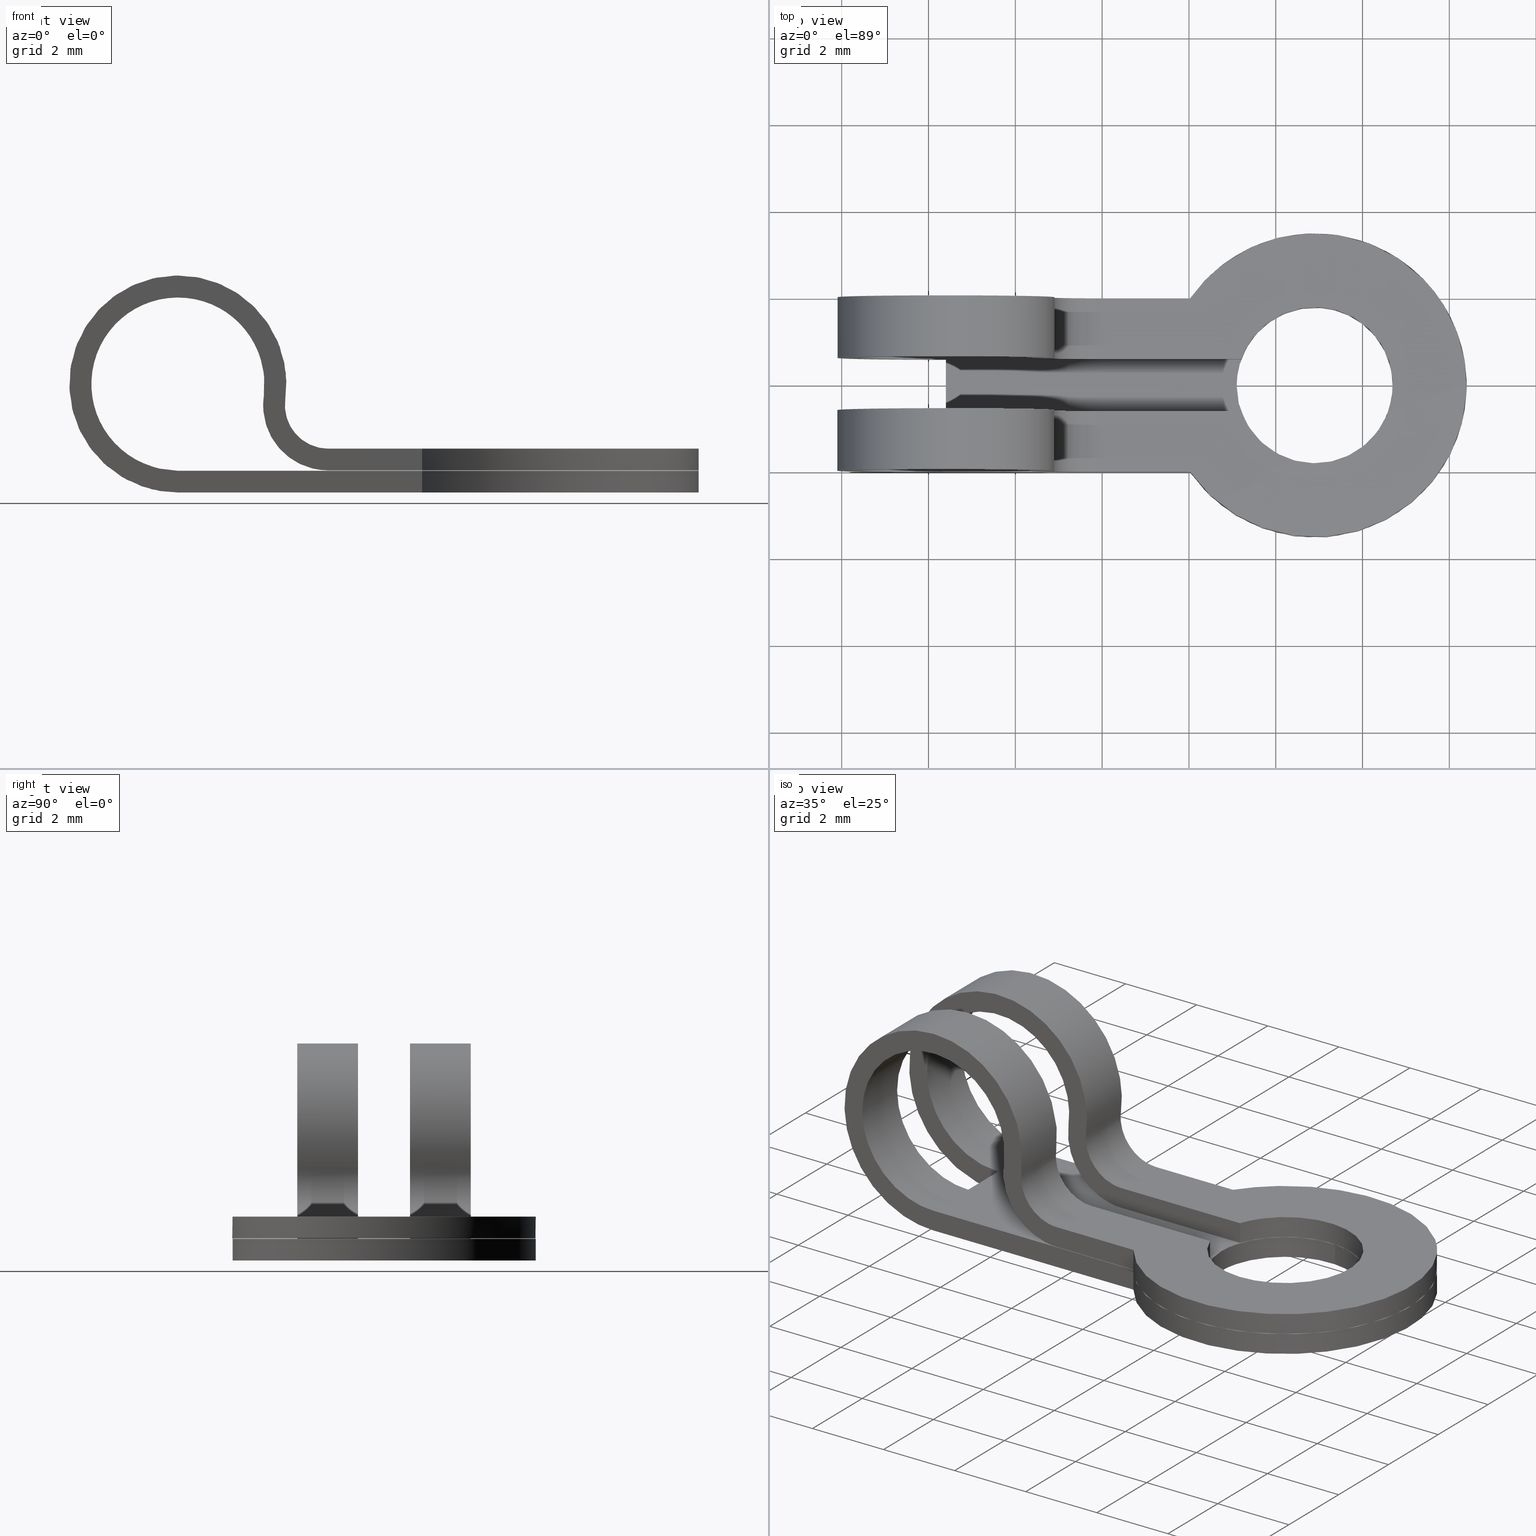
[diagram: canonical four-view strip — front | top / right | iso, engineering-drawing reading convention]
A machine part, canonical four-view strip (front | top / right | iso — engineering-drawing reading convention). The complete STEP part file that produces these views, byte-faithful:
ISO-10303-21;
HEADER;
/****************************************************************
 * Generated by software with PDE/Lib inside                    *
 * PDElib Version 4.4.1-0003, patched  Thursday August 19 11:58 *
 * International Technegroup Inc. (www.iti-oh.com)              *
 ****************************************************************/
FILE_DESCRIPTION((''),'2;1');
FILE_NAME('','2005-12-14T14:30:38',(''),(''),'','CADfix','');
FILE_SCHEMA(('AUTOMOTIVE_DESIGN'));
ENDSEC;
DATA;
#5=APPLICATION_CONTEXT('automotive design');
#6=APPLICATION_PROTOCOL_DEFINITION('Draft International Standard','automotive_design',1998,#5);
#7=PRODUCT_CONTEXT('None',#5,'mechanical');
#8=PRODUCT('terminal','','None',(#7));
#9=PRODUCT_RELATED_PRODUCT_CATEGORY('part','description',(#8));
#10=PRODUCT_DEFINITION_FORMATION('None','None',#8);
#11=PRODUCT_DEFINITION_CONTEXT('part definition',#5,'design');
#12=PRODUCT_DEFINITION('None','None',#10,#11);
#18=(NAMED_UNIT(*)PLANE_ANGLE_UNIT()SI_UNIT($,.RADIAN.));
#19=DIMENSIONAL_EXPONENTS(0.0,0.0,0.0,0.0,0.0,0.0,0.0);
#20=PLANE_ANGLE_MEASURE_WITH_UNIT(PLANE_ANGLE_MEASURE(0.017453292500000),#18);
#24=(CONVERSION_BASED_UNIT('DEGREE',#20)NAMED_UNIT(#19)PLANE_ANGLE_UNIT());
#28=(NAMED_UNIT(*)SI_UNIT($,.STERADIAN.)SOLID_ANGLE_UNIT());
#32=(LENGTH_UNIT()NAMED_UNIT(*)SI_UNIT(.MILLI.,.METRE.));
#34=UNCERTAINTY_MEASURE_WITH_UNIT(LENGTH_MEASURE(0.001000000000000),#32,'DISTANCE_ACCURACY_VALUE','');
#36=(GEOMETRIC_REPRESENTATION_CONTEXT(3)GLOBAL_UNCERTAINTY_ASSIGNED_CONTEXT((#34))GLOBAL_UNIT_ASSIGNED_CONTEXT((#24,#28,#32))REPRESENTATION_CONTEXT('None','None'));
#37=AXIS2_PLACEMENT_3D('',#38,#39,#40);
#38=CARTESIAN_POINT('',(0.0,0.0,0.0));
#39=DIRECTION('',(0.0,0.0,1.0));
#40=DIRECTION('',(1.0,0.0,0.0));
#41=ADVANCED_BREP_SHAPE_REPRESENTATION('',(#37,#1242),#36);
#42=PRODUCT_DEFINITION_SHAPE('','',#12);
#43=SHAPE_DEFINITION_REPRESENTATION(#42,#41);
#44=CARTESIAN_POINT('',(8.758773627689878,-1.794451200719630,-1.987500000000001));
#45=CARTESIAN_POINT('',(6.964322426970250,-1.653224828409509,-1.987500000000001));
#46=CARTESIAN_POINT('',(7.105548799280371,0.141226372310122,-1.987500000000001));
#47=CARTESIAN_POINT('',(7.246775171590492,1.935677573029752,-1.987500000000001));
#48=CARTESIAN_POINT('',(9.041226372310122,1.794451200719630,-1.987500000000001));
#49=CARTESIAN_POINT('',(8.758773627689878,-1.794451200719630,-2.512812499999944));
#50=CARTESIAN_POINT('',(6.964322426970250,-1.653224828409509,-2.512812499999944));
#51=CARTESIAN_POINT('',(7.105548799280371,0.141226372310122,-2.512812499999944));
#52=CARTESIAN_POINT('',(7.246775171590492,1.935677573029752,-2.512812499999944));
#53=CARTESIAN_POINT('',(9.041226372310122,1.794451200719630,-2.512812499999944));
#61=(BOUNDED_SURFACE()B_SPLINE_SURFACE(2,1,((#44,#49),(#45,#50),(#46,#51),(#47,#52),(#48,#53)),.UNSPECIFIED.,.F.,.F.,.U.)B_SPLINE_SURFACE_WITH_KNOTS((3,2,3),(2,2),(3.141592653589793,4.712388980384690,6.283185307179586),(0.0,1.0),.UNSPECIFIED.)GEOMETRIC_REPRESENTATION_ITEM()RATIONAL_B_SPLINE_SURFACE(((1.0,1.0),(0.707106781186548,0.707106781186548),(1.0,1.0),(0.707106781186548,0.707106781186548),(1.0,1.0)))REPRESENTATION_ITEM('')SURFACE());
#62=CARTESIAN_POINT('',(7.100000000000001,0.0,-2.499999999999945));
#63=VERTEX_POINT('',#62);
#64=CARTESIAN_POINT('',(8.758775942928166,-1.794451382929829,-2.499999999999828));
#65=VERTEX_POINT('',#64);
#66=CARTESIAN_POINT('',(7.100000000000001,0.0,-2.499999999999945));
#67=CARTESIAN_POINT('',(7.100000000000001,-1.663905038426308,-2.499999999999946));
#68=CARTESIAN_POINT('',(8.758775942928166,-1.794451382929829,-2.499999999999828));
#76=(BOUNDED_CURVE()B_SPLINE_CURVE(2,(#66,#67,#68),.UNSPECIFIED.,.F.,.U.)B_SPLINE_CURVE_WITH_KNOTS((3,3),(0.0,0.236331521808242),.UNSPECIFIED.)CURVE()GEOMETRIC_REPRESENTATION_ITEM()RATIONAL_B_SPLINE_CURVE((1.0,0.723120399482009,0.969723817748618))REPRESENTATION_ITEM(''));
#77=EDGE_CURVE('',#63,#65,#76,.T.);
#78=ORIENTED_EDGE('',*,*,#77,.F.);
#79=CARTESIAN_POINT('',(9.041224057071837,1.794451382929829,-2.499999999999828));
#80=VERTEX_POINT('',#79);
#81=CARTESIAN_POINT('',(9.041224057071837,1.794451382929829,-2.499999999999829));
#82=CARTESIAN_POINT('',(8.970721029622666,1.800000000000000,-2.499999999999945));
#83=CARTESIAN_POINT('',(8.900000000000000,1.800000000000000,-2.499999999999945));
#84=CARTESIAN_POINT('',(7.100000000000001,1.800000000000001,-2.499999999999945));
#85=CARTESIAN_POINT('',(7.100000000000001,0.0,-2.499999999999945));
#93=(BOUNDED_CURVE()B_SPLINE_CURVE(2,(#81,#82,#83,#84,#85),.UNSPECIFIED.,.F.,.U.)B_SPLINE_CURVE_WITH_KNOTS((3,2,3),(0.736331521808242,0.750000000000000,1.0),.UNSPECIFIED.)CURVE()GEOMETRIC_REPRESENTATION_ITEM()RATIONAL_B_SPLINE_CURVE((0.969723817748617,0.983986381704538,1.0,0.707106781186547,1.0))REPRESENTATION_ITEM(''));
#94=EDGE_CURVE('',#80,#63,#93,.T.);
#95=ORIENTED_EDGE('',*,*,#94,.F.);
#96=CARTESIAN_POINT('',(9.041224085594362,1.794451380685131,-2.0));
#97=VERTEX_POINT('',#96);
#98=CARTESIAN_POINT('',(9.041224085594362,1.794451380685131,-2.0));
#99=CARTESIAN_POINT('',(9.041224057071837,1.794451382929829,-2.499999999999828));
#100=QUASI_UNIFORM_CURVE('',1,(#98,#99),.UNSPECIFIED.,.F.,.U.);
#101=EDGE_CURVE('',#97,#80,#100,.T.);
#102=ORIENTED_EDGE('',*,*,#101,.F.);
#103=CARTESIAN_POINT('',(7.100000000000001,0.0,-2.0));
#104=VERTEX_POINT('',#103);
#105=CARTESIAN_POINT('',(9.041224085594362,1.794451380685131,-2.0));
#106=CARTESIAN_POINT('',(8.970721043950107,1.800000000000000,-2.0));
#107=CARTESIAN_POINT('',(8.900000000000000,1.800000000000000,-2.0));
#108=CARTESIAN_POINT('',(7.100000000000001,1.800000000000001,-2.0));
#109=CARTESIAN_POINT('',(7.100000000000001,0.0,-2.0));
#117=(BOUNDED_CURVE()B_SPLINE_CURVE(2,(#105,#106,#107,#108,#109),.UNSPECIFIED.,.F.,.U.)B_SPLINE_CURVE_WITH_KNOTS((3,2,3),(0.736331519083475,0.750000000000000,1.0),.UNSPECIFIED.)CURVE()GEOMETRIC_REPRESENTATION_ITEM()RATIONAL_B_SPLINE_CURVE((0.969723812062226,0.983986378512276,1.0,0.707106781186547,1.0))REPRESENTATION_ITEM(''));
#118=EDGE_CURVE('',#97,#104,#117,.T.);
#119=ORIENTED_EDGE('',*,*,#118,.T.);
#120=CARTESIAN_POINT('',(8.758775914405639,-1.794451380685131,-2.0));
#121=VERTEX_POINT('',#120);
#122=CARTESIAN_POINT('',(7.100000000000001,0.0,-2.0));
#123=CARTESIAN_POINT('',(7.099999999999999,-1.663905011897021,-2.0));
#124=CARTESIAN_POINT('',(8.758775914405639,-1.794451380685132,-2.000000000000000));
#132=(BOUNDED_CURVE()B_SPLINE_CURVE(2,(#122,#123,#124),.UNSPECIFIED.,.F.,.U.)B_SPLINE_CURVE_WITH_KNOTS((3,3),(0.0,0.236331519083475),.UNSPECIFIED.)CURVE()GEOMETRIC_REPRESENTATION_ITEM()RATIONAL_B_SPLINE_CURVE((1.0,0.723120402674272,0.969723812062226))REPRESENTATION_ITEM(''));
#133=EDGE_CURVE('',#104,#121,#132,.T.);
#134=ORIENTED_EDGE('',*,*,#133,.T.);
#135=CARTESIAN_POINT('',(8.758775914405639,-1.794451380685131,-2.0));
#136=CARTESIAN_POINT('',(8.758775942928166,-1.794451382929829,-2.499999999999828));
#137=QUASI_UNIFORM_CURVE('',1,(#135,#136),.UNSPECIFIED.,.F.,.U.);
#138=EDGE_CURVE('',#121,#65,#137,.T.);
#139=ORIENTED_EDGE('',*,*,#138,.T.);
#140=EDGE_LOOP('',(#78,#95,#102,#119,#134,#139));
#141=FACE_OUTER_BOUND('',#140,.T.);
#142=ADVANCED_FACE('',(#141),#61,.F.);
#143=CARTESIAN_POINT('',(9.041226372310122,1.794451200719630,-1.987500000000001));
#144=CARTESIAN_POINT('',(10.835677573029752,1.653224828409509,-1.987500000000001));
#145=CARTESIAN_POINT('',(10.694451200719630,-0.141226372310122,-1.987500000000001));
#146=CARTESIAN_POINT('',(10.553224828409508,-1.935677573029752,-1.987500000000001));
#147=CARTESIAN_POINT('',(8.758773627689878,-1.794451200719630,-1.987500000000001));
#148=CARTESIAN_POINT('',(9.041226372310122,1.794451200719630,-2.512812499999944));
#149=CARTESIAN_POINT('',(10.835677573029752,1.653224828409509,-2.512812499999944));
#150=CARTESIAN_POINT('',(10.694451200719630,-0.141226372310122,-2.512812499999944));
#151=CARTESIAN_POINT('',(10.553224828409508,-1.935677573029752,-2.512812499999944));
#152=CARTESIAN_POINT('',(8.758773627689878,-1.794451200719630,-2.512812499999944));
#160=(BOUNDED_SURFACE()B_SPLINE_SURFACE(2,1,((#143,#148),(#144,#149),(#145,#150),(#146,#151),(#147,#152)),.UNSPECIFIED.,.F.,.F.,.U.)B_SPLINE_SURFACE_WITH_KNOTS((3,2,3),(2,2),(0.0,1.570796326794897,3.141592653589793),(0.0,1.0),.UNSPECIFIED.)GEOMETRIC_REPRESENTATION_ITEM()RATIONAL_B_SPLINE_SURFACE(((1.0,1.0),(0.707106781186548,0.707106781186548),(1.0,1.0),(0.707106781186548,0.707106781186548),(1.0,1.0)))REPRESENTATION_ITEM('')SURFACE());
#161=CARTESIAN_POINT('',(10.699999999999999,0.0,-2.499999999999945));
#162=VERTEX_POINT('',#161);
#163=CARTESIAN_POINT('',(8.758775942928166,-1.794451382929829,-2.499999999999828));
#164=CARTESIAN_POINT('',(8.829278970377336,-1.800000000000000,-2.499999999999945));
#165=CARTESIAN_POINT('',(8.900000000000000,-1.800000000000000,-2.499999999999945));
#166=CARTESIAN_POINT('',(10.699999999999999,-1.800000000000001,-2.499999999999945));
#167=CARTESIAN_POINT('',(10.699999999999999,0.0,-2.499999999999945));
#175=(BOUNDED_CURVE()B_SPLINE_CURVE(2,(#163,#164,#165,#166,#167),.UNSPECIFIED.,.F.,.U.)B_SPLINE_CURVE_WITH_KNOTS((3,2,3),(0.236331521808242,0.250000000000000,0.500000000000000),.UNSPECIFIED.)CURVE()GEOMETRIC_REPRESENTATION_ITEM()RATIONAL_B_SPLINE_CURVE((0.969723817748618,0.983986381704538,1.0,0.707106781186547,1.0))REPRESENTATION_ITEM(''));
#176=EDGE_CURVE('',#65,#162,#175,.T.);
#177=ORIENTED_EDGE('',*,*,#176,.F.);
#178=ORIENTED_EDGE('',*,*,#138,.F.);
#179=CARTESIAN_POINT('',(10.699999999999999,0.0,-2.0));
#180=VERTEX_POINT('',#179);
#181=CARTESIAN_POINT('',(8.758775914405639,-1.794451380685132,-2.000000000000000));
#182=CARTESIAN_POINT('',(8.829278956049892,-1.800000000000000,-2.000000000000000));
#183=CARTESIAN_POINT('',(8.900000000000000,-1.800000000000000,-2.0));
#184=CARTESIAN_POINT('',(10.699999999999999,-1.800000000000001,-2.0));
#185=CARTESIAN_POINT('',(10.699999999999999,0.0,-2.0));
#193=(BOUNDED_CURVE()B_SPLINE_CURVE(2,(#181,#182,#183,#184,#185),.UNSPECIFIED.,.F.,.U.)B_SPLINE_CURVE_WITH_KNOTS((3,2,3),(0.236331519083475,0.250000000000000,0.500000000000000),.UNSPECIFIED.)CURVE()GEOMETRIC_REPRESENTATION_ITEM()RATIONAL_B_SPLINE_CURVE((0.969723812062226,0.983986378512275,1.0,0.707106781186547,1.0))REPRESENTATION_ITEM(''));
#194=EDGE_CURVE('',#121,#180,#193,.T.);
#195=ORIENTED_EDGE('',*,*,#194,.T.);
#196=CARTESIAN_POINT('',(10.699999999999999,0.0,-2.0));
#197=CARTESIAN_POINT('',(10.699999999999999,1.663905011897023,-2.000000000000000));
#198=CARTESIAN_POINT('',(9.041224085594362,1.794451380685131,-2.000000000000000));
#206=(BOUNDED_CURVE()B_SPLINE_CURVE(2,(#196,#197,#198),.UNSPECIFIED.,.F.,.U.)B_SPLINE_CURVE_WITH_KNOTS((3,3),(0.500000000000000,0.736331519083476),.UNSPECIFIED.)CURVE()GEOMETRIC_REPRESENTATION_ITEM()RATIONAL_B_SPLINE_CURVE((1.0,0.723120402674272,0.969723812062227))REPRESENTATION_ITEM(''));
#207=EDGE_CURVE('',#180,#97,#206,.T.);
#208=ORIENTED_EDGE('',*,*,#207,.T.);
#209=ORIENTED_EDGE('',*,*,#101,.T.);
#210=CARTESIAN_POINT('',(10.699999999999999,0.0,-2.499999999999945));
#211=CARTESIAN_POINT('',(10.700000000000001,1.663905038426307,-2.499999999999945));
#212=CARTESIAN_POINT('',(9.041224057071837,1.794451382929829,-2.499999999999828));
#220=(BOUNDED_CURVE()B_SPLINE_CURVE(2,(#210,#211,#212),.UNSPECIFIED.,.F.,.U.)B_SPLINE_CURVE_WITH_KNOTS((3,3),(0.500000000000000,0.736331521808242),.UNSPECIFIED.)CURVE()GEOMETRIC_REPRESENTATION_ITEM()RATIONAL_B_SPLINE_CURVE((1.0,0.723120399482009,0.969723817748617))REPRESENTATION_ITEM(''));
#221=EDGE_CURVE('',#162,#80,#220,.T.);
#222=ORIENTED_EDGE('',*,*,#221,.F.);
#223=EDGE_LOOP('',(#177,#178,#195,#208,#209,#222));
#224=FACE_OUTER_BOUND('',#223,.T.);
#225=ADVANCED_FACE('',(#224),#160,.F.);
#226=CARTESIAN_POINT('',(-2.561805675643440,0.600000000000009,2.743662046927382));
#227=CARTESIAN_POINT('',(-2.561805675643440,0.600000000000009,-2.749460498458957));
#228=CARTESIAN_POINT('',(7.667489156929456,0.600000000000009,2.743662046927381));
#229=CARTESIAN_POINT('',(7.667489156929456,0.600000000000009,-2.749460498458957));
#230=B_SPLINE_SURFACE_WITH_KNOTS('',1,1,((#226,#228),(#227,#229)),.UNSPECIFIED.,.F.,.F.,.U.,(2,2),(2,2),(0.0,5.493122545386338),(0.0,10.229294832572901),.UNSPECIFIED.);
#231=CARTESIAN_POINT('',(0.400000000000006,0.600000000000045,-2.0));
#232=VERTEX_POINT('',#231);
#233=CARTESIAN_POINT('',(0.400000000000005,0.600000000000045,-2.500000000000000));
#234=VERTEX_POINT('',#233);
#235=CARTESIAN_POINT('',(0.400000000000006,0.600000000000045,-2.0));
#236=CARTESIAN_POINT('',(0.400000000000005,0.600000000000045,-2.500000000000000));
#237=QUASI_UNIFORM_CURVE('',1,(#235,#236),.UNSPECIFIED.,.F.,.U.);
#238=EDGE_CURVE('',#232,#234,#237,.T.);
#239=ORIENTED_EDGE('',*,*,#238,.F.);
#240=CARTESIAN_POINT('',(2.380303007117855,0.600000000000156,-0.280000000000000));
#241=VERTEX_POINT('',#240);
#242=CARTESIAN_POINT('',(0.400000000000006,0.600000000000045,-2.0));
#243=CARTESIAN_POINT('',(-0.987758630280445,0.600000000000045,-2.000000000000000));
#244=CARTESIAN_POINT('',(-1.473490562307195,0.600000000000045,-0.700023651704605));
#245=CARTESIAN_POINT('',(-1.959222494333946,0.600000000000045,0.599952696590790));
#246=CARTESIAN_POINT('',(-0.911487704860395,0.600000000000045,1.509966887054150));
#247=CARTESIAN_POINT('',(0.136247084613156,0.600000000000045,2.419981077517510));
#248=CARTESIAN_POINT('',(1.355418149985137,0.600000000000045,1.757036185933286));
#249=CARTESIAN_POINT('',(2.574589215357118,0.600000000000045,1.094091294349062));
#250=CARTESIAN_POINT('',(2.380303007117855,0.600000000000156,-0.280000000000000));
#258=(BOUNDED_CURVE()B_SPLINE_CURVE(2,(#242,#243,#244,#245,#246,#247,#248,#249,#250),.UNSPECIFIED.,.F.,.U.)B_SPLINE_CURVE_WITH_KNOTS((3,2,2,2,3),(0.0,0.250000000000000,0.500000000000000,0.750000000000000,1.0),.UNSPECIFIED.)CURVE()GEOMETRIC_REPRESENTATION_ITEM()RATIONAL_B_SPLINE_CURVE((1.0,0.821587434742129,1.0,0.821587434742129,1.0,0.821587434742129,1.0,0.821587434742129,1.0))REPRESENTATION_ITEM(''));
#259=EDGE_CURVE('',#232,#241,#258,.T.);
#260=ORIENTED_EDGE('',*,*,#259,.T.);
#261=CARTESIAN_POINT('',(3.865530262456245,0.600000000000156,-1.990000000000000));
#262=VERTEX_POINT('',#261);
#263=CARTESIAN_POINT('',(2.380303007117858,0.600000000000156,-0.280000000000000));
#264=CARTESIAN_POINT('',(2.284547541737157,0.600000000000156,-0.957231557290600));
#265=CARTESIAN_POINT('',(2.733055097165632,0.600000000000156,-1.473615778645300));
#266=CARTESIAN_POINT('',(3.181562652594107,0.600000000000156,-1.990000000000000));
#267=CARTESIAN_POINT('',(3.865530262456245,0.600000000000156,-1.990000000000000));
#275=(BOUNDED_CURVE()B_SPLINE_CURVE(2,(#263,#264,#265,#266,#267),.UNSPECIFIED.,.F.,.U.)B_SPLINE_CURVE_WITH_KNOTS((3,2,3),(0.0,0.500000000000000,1.0),.UNSPECIFIED.)CURVE()GEOMETRIC_REPRESENTATION_ITEM()RATIONAL_B_SPLINE_CURVE((1.0,0.909874676103858,1.0,0.909874676103858,1.0))REPRESENTATION_ITEM(''));
#276=EDGE_CURVE('',#241,#262,#275,.T.);
#277=ORIENTED_EDGE('',*,*,#276,.T.);
#278=CARTESIAN_POINT('',(7.202943725152349,0.600000000000156,-1.990000000000045));
#279=VERTEX_POINT('',#278);
#280=CARTESIAN_POINT('',(7.202943725152349,0.600000000000156,-1.990000000000045));
#281=CARTESIAN_POINT('',(3.865530262456245,0.600000000000156,-1.990000000000000));
#282=QUASI_UNIFORM_CURVE('',1,(#280,#281),.UNSPECIFIED.,.F.,.U.);
#283=EDGE_CURVE('',#279,#262,#282,.T.);
#284=ORIENTED_EDGE('',*,*,#283,.F.);
#285=CARTESIAN_POINT('',(7.202943725152349,0.600000000000156,-1.490000000000000));
#286=VERTEX_POINT('',#285);
#287=CARTESIAN_POINT('',(7.202943725152349,0.600000000000156,-1.990000000000045));
#288=CARTESIAN_POINT('',(7.202943725152349,0.600000000000156,-1.490000000000000));
#289=QUASI_UNIFORM_CURVE('',1,(#287,#288),.UNSPECIFIED.,.F.,.U.);
#290=EDGE_CURVE('',#279,#286,#289,.T.);
#291=ORIENTED_EDGE('',*,*,#290,.T.);
#292=CARTESIAN_POINT('',(3.865530262456245,0.600000000000156,-1.490000000000000));
#293=VERTEX_POINT('',#292);
#294=CARTESIAN_POINT('',(3.865530262456245,0.600000000000156,-1.490000000000000));
#295=CARTESIAN_POINT('',(7.202943725152349,0.600000000000156,-1.490000000000000));
#296=QUASI_UNIFORM_CURVE('',1,(#294,#295),.UNSPECIFIED.,.F.,.U.);
#297=EDGE_CURVE('',#293,#286,#296,.T.);
#298=ORIENTED_EDGE('',*,*,#297,.F.);
#299=CARTESIAN_POINT('',(2.875378758897320,0.600000000000156,-0.350000000000000));
#300=VERTEX_POINT('',#299);
#301=CARTESIAN_POINT('',(2.875378758897320,0.600000000000156,-0.350000000000000));
#302=CARTESIAN_POINT('',(2.811541781976854,0.600000000000156,-0.801487704860400));
#303=CARTESIAN_POINT('',(3.110546818929170,0.600000000000156,-1.145743852430200));
#304=CARTESIAN_POINT('',(3.409551855881486,0.600000000000156,-1.490000000000001));
#305=CARTESIAN_POINT('',(3.865530262456245,0.600000000000156,-1.490000000000000));
#313=(BOUNDED_CURVE()B_SPLINE_CURVE(2,(#301,#302,#303,#304,#305),.UNSPECIFIED.,.F.,.U.)B_SPLINE_CURVE_WITH_KNOTS((3,2,3),(0.0,0.500000000000000,1.0),.UNSPECIFIED.)CURVE()GEOMETRIC_REPRESENTATION_ITEM()RATIONAL_B_SPLINE_CURVE((1.0,0.909874676103857,1.0,0.909874676103857,1.0))REPRESENTATION_ITEM(''));
#314=EDGE_CURVE('',#300,#293,#313,.T.);
#315=ORIENTED_EDGE('',*,*,#314,.F.);
#316=CARTESIAN_POINT('',(0.400000000000006,0.600000000000045,-2.500000000000000));
#317=CARTESIAN_POINT('',(-1.334698287850557,0.600000000000045,-2.500000000000000));
#318=CARTESIAN_POINT('',(-1.941863202883995,0.600000000000045,-0.875029564630756));
#319=CARTESIAN_POINT('',(-2.549028117917433,0.600000000000045,0.749940870738488));
#320=CARTESIAN_POINT('',(-1.239359631075495,0.600000000000045,1.887458608817687));
#321=CARTESIAN_POINT('',(0.070308855766444,0.600000000000045,3.024976346896888));
#322=CARTESIAN_POINT('',(1.594272687481420,0.600000000000045,2.196295232416607));
#323=CARTESIAN_POINT('',(3.118236519196397,0.600000000000045,1.367614117936327));
#324=CARTESIAN_POINT('',(2.875378758897320,0.600000000000156,-0.350000000000000));
#332=(BOUNDED_CURVE()B_SPLINE_CURVE(2,(#316,#317,#318,#319,#320,#321,#322,#323,#324),.UNSPECIFIED.,.F.,.U.)B_SPLINE_CURVE_WITH_KNOTS((3,2,2,2,3),(0.0,0.250000000000000,0.500000000000000,0.750000000000000,1.0),.UNSPECIFIED.)CURVE()GEOMETRIC_REPRESENTATION_ITEM()RATIONAL_B_SPLINE_CURVE((1.0,0.821587434742129,1.0,0.821587434742129,1.0,0.821587434742129,1.0,0.821587434742129,1.0))REPRESENTATION_ITEM(''));
#333=EDGE_CURVE('',#234,#300,#332,.T.);
#334=ORIENTED_EDGE('',*,*,#333,.F.);
#335=EDGE_LOOP('',(#239,#260,#277,#284,#291,#298,#315,#334));
#336=FACE_OUTER_BOUND('',#335,.T.);
#337=ADVANCED_FACE('',(#336),#230,.T.);
#338=CARTESIAN_POINT('',(0.400000000000006,-0.659940031468394,-2.524974999030903));
#339=CARTESIAN_POINT('',(0.400000000000006,-0.659940031468394,-1.975024987558052));
#340=CARTESIAN_POINT('',(0.400000000000006,0.659940031468439,-2.524974999030903));
#341=CARTESIAN_POINT('',(0.400000000000006,0.659940031468439,-1.975024987558052));
#342=B_SPLINE_SURFACE_WITH_KNOTS('',1,1,((#338,#340),(#339,#341)),.UNSPECIFIED.,.F.,.F.,.U.,(2,2),(2,2),(0.041708334948495,0.958291687403247),(0.041708311480284,0.958291688519716),.UNSPECIFIED.);
#343=CARTESIAN_POINT('',(0.400000000000006,-0.600000000000000,-2.0));
#344=VERTEX_POINT('',#343);
#345=CARTESIAN_POINT('',(0.400000000000006,-0.600000000000000,-2.0));
#346=CARTESIAN_POINT('',(0.400000000000006,0.600000000000045,-2.0));
#347=QUASI_UNIFORM_CURVE('',1,(#345,#346),.UNSPECIFIED.,.F.,.U.);
#348=EDGE_CURVE('',#344,#232,#347,.T.);
#349=ORIENTED_EDGE('',*,*,#348,.T.);
#350=ORIENTED_EDGE('',*,*,#238,.T.);
#351=CARTESIAN_POINT('',(0.400000000000006,-0.600000000000000,-2.499999999999945));
#352=VERTEX_POINT('',#351);
#353=CARTESIAN_POINT('',(0.400000000000006,-0.600000000000000,-2.499999999999945));
#354=CARTESIAN_POINT('',(0.400000000000005,0.600000000000045,-2.500000000000000));
#355=QUASI_UNIFORM_CURVE('',1,(#353,#354),.UNSPECIFIED.,.F.,.U.);
#356=EDGE_CURVE('',#352,#234,#355,.T.);
#357=ORIENTED_EDGE('',*,*,#356,.F.);
#358=CARTESIAN_POINT('',(0.400000000000006,-0.600000000000000,-2.0));
#359=CARTESIAN_POINT('',(0.400000000000006,-0.600000000000000,-2.499999999999945));
#360=QUASI_UNIFORM_CURVE('',1,(#358,#359),.UNSPECIFIED.,.F.,.U.);
#361=EDGE_CURVE('',#344,#352,#360,.T.);
#362=ORIENTED_EDGE('',*,*,#361,.F.);
#363=EDGE_LOOP('',(#349,#350,#357,#362));
#364=FACE_OUTER_BOUND('',#363,.T.);
#365=ADVANCED_FACE('',(#364),#342,.T.);
#366=CARTESIAN_POINT('',(-2.561805728698304,-0.600000000000000,-2.749460361022603));
#367=CARTESIAN_POINT('',(-2.561805728698304,-0.600000000000000,2.743662111008236));
#368=CARTESIAN_POINT('',(7.667489159453433,-0.600000000000000,-2.749460361022603));
#369=CARTESIAN_POINT('',(7.667489159453433,-0.600000000000000,2.743662111008236));
#370=B_SPLINE_SURFACE_WITH_KNOTS('',1,1,((#366,#368),(#367,#369)),.UNSPECIFIED.,.F.,.F.,.U.,(2,2),(2,2),(0.0,5.493122472030838),(0.0,10.229294888151740),.UNSPECIFIED.);
#371=ORIENTED_EDGE('',*,*,#361,.T.);
#372=CARTESIAN_POINT('',(2.875378758897320,-0.600000000000045,-0.350000000000000));
#373=VERTEX_POINT('',#372);
#374=CARTESIAN_POINT('',(2.875378758897318,-0.600000000000045,-0.350000000000001));
#375=CARTESIAN_POINT('',(3.118236519196397,-0.600000000000045,1.367614117936326));
#376=CARTESIAN_POINT('',(1.594272687481421,-0.600000000000045,2.196295232416607));
#377=CARTESIAN_POINT('',(0.070308855766445,-0.600000000000045,3.024976346896888));
#378=CARTESIAN_POINT('',(-1.239359631075494,-0.600000000000045,1.887458608817688));
#379=CARTESIAN_POINT('',(-2.549028117917432,-0.600000000000045,0.749940870738490));
#380=CARTESIAN_POINT('',(-1.941863202883996,-0.600000000000045,-0.875029564630753));
#381=CARTESIAN_POINT('',(-1.334698287850559,-0.600000000000045,-2.500000000000000));
#382=CARTESIAN_POINT('',(0.400000000000006,-0.600000000000000,-2.499999999999945));
#390=(BOUNDED_CURVE()B_SPLINE_CURVE(2,(#374,#375,#376,#377,#378,#379,#380,#381,#382),.UNSPECIFIED.,.F.,.U.)B_SPLINE_CURVE_WITH_KNOTS((3,2,2,2,3),(0.0,0.250000000000000,0.500000000000000,0.750000000000000,1.0),.UNSPECIFIED.)CURVE()GEOMETRIC_REPRESENTATION_ITEM()RATIONAL_B_SPLINE_CURVE((1.0,0.821587434742129,1.0,0.821587434742129,1.0,0.821587434742129,1.0,0.821587434742129,1.0))REPRESENTATION_ITEM(''));
#391=EDGE_CURVE('',#373,#352,#390,.T.);
#392=ORIENTED_EDGE('',*,*,#391,.F.);
#393=CARTESIAN_POINT('',(3.865530262456245,-0.600000000000045,-1.490000000000000));
#394=VERTEX_POINT('',#393);
#395=CARTESIAN_POINT('',(3.865530262456245,-0.600000000000045,-1.490000000000000));
#396=CARTESIAN_POINT('',(3.409551855881486,-0.600000000000045,-1.490000000000000));
#397=CARTESIAN_POINT('',(3.110546818929170,-0.600000000000045,-1.145743852430200));
#398=CARTESIAN_POINT('',(2.811541781976854,-0.600000000000045,-0.801487704860400));
#399=CARTESIAN_POINT('',(2.875378758897320,-0.600000000000045,-0.350000000000000));
#407=(BOUNDED_CURVE()B_SPLINE_CURVE(2,(#395,#396,#397,#398,#399),.UNSPECIFIED.,.F.,.U.)B_SPLINE_CURVE_WITH_KNOTS((3,2,3),(0.0,0.500000000000000,1.0),.UNSPECIFIED.)CURVE()GEOMETRIC_REPRESENTATION_ITEM()RATIONAL_B_SPLINE_CURVE((1.0,0.909874676103858,1.0,0.909874676103858,1.0))REPRESENTATION_ITEM(''));
#408=EDGE_CURVE('',#394,#373,#407,.T.);
#409=ORIENTED_EDGE('',*,*,#408,.F.);
#410=CARTESIAN_POINT('',(7.202943725152309,-0.600000000000045,-1.490000000000000));
#411=VERTEX_POINT('',#410);
#412=CARTESIAN_POINT('',(7.202943725152309,-0.600000000000045,-1.490000000000000));
#413=CARTESIAN_POINT('',(3.865530262456245,-0.600000000000045,-1.490000000000000));
#414=QUASI_UNIFORM_CURVE('',1,(#412,#413),.UNSPECIFIED.,.F.,.U.);
#415=EDGE_CURVE('',#411,#394,#414,.T.);
#416=ORIENTED_EDGE('',*,*,#415,.F.);
#417=CARTESIAN_POINT('',(7.202943725152309,-0.600000000000045,-1.990000000000045));
#418=VERTEX_POINT('',#417);
#419=CARTESIAN_POINT('',(7.202943725152309,-0.600000000000045,-1.490000000000000));
#420=CARTESIAN_POINT('',(7.202943725152309,-0.600000000000045,-1.990000000000045));
#421=QUASI_UNIFORM_CURVE('',1,(#419,#420),.UNSPECIFIED.,.F.,.U.);
#422=EDGE_CURVE('',#411,#418,#421,.T.);
#423=ORIENTED_EDGE('',*,*,#422,.T.);
#424=CARTESIAN_POINT('',(3.865530262456245,-0.600000000000045,-1.990000000000000));
#425=VERTEX_POINT('',#424);
#426=CARTESIAN_POINT('',(3.865530262456245,-0.600000000000045,-1.990000000000000));
#427=CARTESIAN_POINT('',(7.202943725152309,-0.600000000000045,-1.990000000000045));
#428=QUASI_UNIFORM_CURVE('',1,(#426,#427),.UNSPECIFIED.,.F.,.U.);
#429=EDGE_CURVE('',#425,#418,#428,.T.);
#430=ORIENTED_EDGE('',*,*,#429,.F.);
#431=CARTESIAN_POINT('',(2.380303007117855,-0.600000000000045,-0.280000000000000));
#432=VERTEX_POINT('',#431);
#433=CARTESIAN_POINT('',(3.865530262456245,-0.600000000000045,-1.990000000000000));
#434=CARTESIAN_POINT('',(3.181562652594107,-0.600000000000045,-1.990000000000000));
#435=CARTESIAN_POINT('',(2.733055097165632,-0.600000000000045,-1.473615778645300));
#436=CARTESIAN_POINT('',(2.284547541737158,-0.600000000000045,-0.957231557290600));
#437=CARTESIAN_POINT('',(2.380303007117858,-0.600000000000045,-0.280000000000000));
#445=(BOUNDED_CURVE()B_SPLINE_CURVE(2,(#433,#434,#435,#436,#437),.UNSPECIFIED.,.F.,.U.)B_SPLINE_CURVE_WITH_KNOTS((3,2,3),(0.0,0.500000000000000,1.0),.UNSPECIFIED.)CURVE()GEOMETRIC_REPRESENTATION_ITEM()RATIONAL_B_SPLINE_CURVE((1.0,0.909874676103858,1.0,0.909874676103858,1.0))REPRESENTATION_ITEM(''));
#446=EDGE_CURVE('',#425,#432,#445,.T.);
#447=ORIENTED_EDGE('',*,*,#446,.T.);
#448=CARTESIAN_POINT('',(2.380303007117856,-0.600000000000045,-0.280000000000001));
#449=CARTESIAN_POINT('',(2.574589215357118,-0.600000000000045,1.094091294349061));
#450=CARTESIAN_POINT('',(1.355418149985138,-0.600000000000045,1.757036185933286));
#451=CARTESIAN_POINT('',(0.136247084613157,-0.600000000000045,2.419981077517511));
#452=CARTESIAN_POINT('',(-0.911487704860394,-0.600000000000045,1.509966887054151));
#453=CARTESIAN_POINT('',(-1.959222494333944,-0.600000000000045,0.599952696590792));
#454=CARTESIAN_POINT('',(-1.473490562307196,-0.600000000000045,-0.700023651704603));
#455=CARTESIAN_POINT('',(-0.987758630280446,-0.600000000000045,-2.000000000000000));
#456=CARTESIAN_POINT('',(0.400000000000006,-0.600000000000000,-2.0));
#464=(BOUNDED_CURVE()B_SPLINE_CURVE(2,(#448,#449,#450,#451,#452,#453,#454,#455,#456),.UNSPECIFIED.,.F.,.U.)B_SPLINE_CURVE_WITH_KNOTS((3,2,2,2,3),(0.0,0.250000000000000,0.500000000000000,0.750000000000000,1.0),.UNSPECIFIED.)CURVE()GEOMETRIC_REPRESENTATION_ITEM()RATIONAL_B_SPLINE_CURVE((1.0,0.821587434742129,1.0,0.821587434742129,1.0,0.821587434742129,1.0,0.821587434742129,1.0))REPRESENTATION_ITEM(''));
#465=EDGE_CURVE('',#432,#344,#464,.T.);
#466=ORIENTED_EDGE('',*,*,#465,.T.);
#467=EDGE_LOOP('',(#371,#392,#409,#416,#423,#430,#447,#466));
#468=FACE_OUTER_BOUND('',#467,.T.);
#469=ADVANCED_FACE('',(#468),#370,.T.);
#470=CARTESIAN_POINT('',(7.178915998559314,-0.527133626308276,-1.477499999999999));
#471=CARTESIAN_POINT('',(7.178915998559314,-0.527133626308276,-2.002812500000046));
#472=CARTESIAN_POINT('',(7.637146268966073,-2.023249123428347,-1.477499999999999));
#473=CARTESIAN_POINT('',(7.637146268966073,-2.023249123428347,-2.002812500000045));
#474=CARTESIAN_POINT('',(9.182475000599778,-1.777697351642329,-1.477499999999999));
#475=CARTESIAN_POINT('',(9.182475000599778,-1.777697351642329,-2.002812500000046));
#476=CARTESIAN_POINT('',(10.727803732233482,-1.532145579856311,-1.477499999999999));
#477=CARTESIAN_POINT('',(10.727803732233482,-1.532145579856311,-2.002812500000045));
#478=CARTESIAN_POINT('',(10.699709844995020,0.032318320315157,-1.477499999999999));
#479=CARTESIAN_POINT('',(10.699709844995020,0.032318320315157,-2.002812500000046));
#480=CARTESIAN_POINT('',(10.671615957756558,1.596782220486626,-1.477499999999999));
#481=CARTESIAN_POINT('',(10.671615957756558,1.596782220486626,-2.002812500000045));
#482=CARTESIAN_POINT('',(9.118467399312856,1.786693033354491,-1.477499999999999));
#483=CARTESIAN_POINT('',(9.118467399312856,1.786693033354491,-2.002812500000046));
#484=CARTESIAN_POINT('',(7.565318840869152,1.976603846222359,-1.477499999999999));
#485=CARTESIAN_POINT('',(7.565318840869152,1.976603846222359,-2.002812500000045));
#486=CARTESIAN_POINT('',(7.161099725847080,0.465000899516226,-1.477499999999999));
#487=CARTESIAN_POINT('',(7.161099725847080,0.465000899516226,-2.002812500000046));
#495=(BOUNDED_SURFACE()B_SPLINE_SURFACE(1,2,((#470,#472,#474,#476,#478,#480,#482,#484,#486),(#471,#473,#475,#477,#479,#481,#483,#485,#487)),.UNSPECIFIED.,.F.,.F.,.U.)B_SPLINE_SURFACE_WITH_KNOTS((2,2),(3,2,2,2,3),(0.0,1.0),(0.0,2.691969692290592,5.383939384581185,8.075909076871778,10.767878769162371),.UNSPECIFIED.)GEOMETRIC_REPRESENTATION_ITEM()RATIONAL_B_SPLINE_SURFACE(((1.0,0.754709580222772,1.0,0.754709580222772,1.0,0.754709580222772,1.0,0.754709580222772,1.0),(1.0,0.754709580222772,1.0,0.754709580222772,1.0,0.754709580222772,1.0,0.754709580222772,1.0)))REPRESENTATION_ITEM('')SURFACE());
#496=ORIENTED_EDGE('',*,*,#290,.F.);
#497=CARTESIAN_POINT('',(7.202943725152342,0.600000000000158,-1.990000000000045));
#498=CARTESIAN_POINT('',(7.708767123412920,2.030684619971248,-1.990000000000046));
#499=CARTESIAN_POINT('',(9.204383561706486,1.774077407376261,-1.990000000000045));
#500=CARTESIAN_POINT('',(10.699999999999999,1.517470194781282,-1.990000000000046));
#501=CARTESIAN_POINT('',(10.699999999999999,0.0,-1.990000000000045));
#502=CARTESIAN_POINT('',(10.699999999999999,-1.517470194781383,-1.990000000000046));
#503=CARTESIAN_POINT('',(9.204383561706369,-1.774077407376280,-1.990000000000045));
#504=CARTESIAN_POINT('',(7.708767123412788,-2.030684619971169,-1.990000000000046));
#505=CARTESIAN_POINT('',(7.202943725152303,-0.600000000000047,-1.990000000000045));
#513=(BOUNDED_CURVE()B_SPLINE_CURVE(2,(#497,#498,#499,#500,#501,#502,#503,#504,#505),.UNSPECIFIED.,.F.,.U.)B_SPLINE_CURVE_WITH_KNOTS((3,2,2,2,3),(0.0,0.250000000000000,0.500000000000000,0.750000000000000,1.0),.UNSPECIFIED.)CURVE()GEOMETRIC_REPRESENTATION_ITEM()RATIONAL_B_SPLINE_CURVE((1.0,0.764559343257864,1.0,0.764559343257864,1.0,0.764559343257864,1.0,0.764559343257864,1.0))REPRESENTATION_ITEM(''));
#514=EDGE_CURVE('',#279,#418,#513,.T.);
#515=ORIENTED_EDGE('',*,*,#514,.T.);
#516=ORIENTED_EDGE('',*,*,#422,.F.);
#517=CARTESIAN_POINT('',(7.202943725152303,-0.600000000000048,-1.490000000000000));
#518=CARTESIAN_POINT('',(7.708767123412788,-2.030684619971169,-1.490000000000000));
#519=CARTESIAN_POINT('',(9.204383561706369,-1.774077407376280,-1.490000000000000));
#520=CARTESIAN_POINT('',(10.699999999999998,-1.517470194781383,-1.490000000000000));
#521=CARTESIAN_POINT('',(10.699999999999999,0.0,-1.490000000000000));
#522=CARTESIAN_POINT('',(10.699999999999998,1.517470194781283,-1.490000000000000));
#523=CARTESIAN_POINT('',(9.204383561706484,1.774077407376261,-1.490000000000000));
#524=CARTESIAN_POINT('',(7.708767123412920,2.030684619971247,-1.490000000000000));
#525=CARTESIAN_POINT('',(7.202943725152342,0.600000000000158,-1.490000000000000));
#533=(BOUNDED_CURVE()B_SPLINE_CURVE(2,(#517,#518,#519,#520,#521,#522,#523,#524,#525),.UNSPECIFIED.,.F.,.U.)B_SPLINE_CURVE_WITH_KNOTS((3,2,2,2,3),(0.0,0.250000000000000,0.500000000000000,0.750000000000000,1.0),.UNSPECIFIED.)CURVE()GEOMETRIC_REPRESENTATION_ITEM()RATIONAL_B_SPLINE_CURVE((1.0,0.764559343257864,1.0,0.764559343257864,1.0,0.764559343257864,1.0,0.764559343257864,1.0))REPRESENTATION_ITEM(''));
#534=EDGE_CURVE('',#411,#286,#533,.T.);
#535=ORIENTED_EDGE('',*,*,#534,.T.);
#536=EDGE_LOOP('',(#496,#515,#516,#535));
#537=FACE_OUTER_BOUND('',#536,.T.);
#538=ADVANCED_FACE('',(#537),#495,.F.);
#539=CARTESIAN_POINT('',(3.908315354965192,-0.565000000000046,-1.489084298675042));
#540=CARTESIAN_POINT('',(3.908315354965192,-2.035874999999999,-1.489084298675042));
#541=CARTESIAN_POINT('',(2.611393413171776,-0.565000000000046,-1.544624081784539));
#542=CARTESIAN_POINT('',(2.611393413171776,-2.035875000000000,-1.544624081784539));
#543=CARTESIAN_POINT('',(2.888596747972752,-0.565000000000046,-0.276456308267063));
#544=CARTESIAN_POINT('',(2.888596747972752,-2.035874999999999,-0.276456308267063));
#552=(BOUNDED_SURFACE()B_SPLINE_SURFACE(1,2,((#539,#541,#543),(#540,#542,#544)),.UNSPECIFIED.,.F.,.F.,.U.)B_SPLINE_SURFACE_WITH_KNOTS((2,2),(3,3),(0.0,1.0),(0.0,0.997607128758263),.UNSPECIFIED.)GEOMETRIC_REPRESENTATION_ITEM()RATIONAL_B_SPLINE_SURFACE(((1.0,0.609697612533904,0.998132113282902),(1.0,0.609697612533904,0.998132113282902)))REPRESENTATION_ITEM('')SURFACE());
#553=CARTESIAN_POINT('',(3.865530262456245,-2.0,-1.490000000000000));
#554=VERTEX_POINT('',#553);
#555=CARTESIAN_POINT('',(3.865530262456245,-0.600000000000045,-1.490000000000000));
#556=CARTESIAN_POINT('',(3.865530262456245,-2.0,-1.490000000000000));
#557=QUASI_UNIFORM_CURVE('',1,(#555,#556),.UNSPECIFIED.,.F.,.U.);
#558=EDGE_CURVE('',#394,#554,#557,.T.);
#559=ORIENTED_EDGE('',*,*,#558,.F.);
#560=ORIENTED_EDGE('',*,*,#408,.T.);
#561=CARTESIAN_POINT('',(2.875378758897320,-2.0,-0.350000000000000));
#562=VERTEX_POINT('',#561);
#563=CARTESIAN_POINT('',(2.875378758897320,-0.600000000000045,-0.350000000000000));
#564=CARTESIAN_POINT('',(2.875378758897320,-2.0,-0.350000000000000));
#565=QUASI_UNIFORM_CURVE('',1,(#563,#564),.UNSPECIFIED.,.F.,.U.);
#566=EDGE_CURVE('',#373,#562,#565,.T.);
#567=ORIENTED_EDGE('',*,*,#566,.T.);
#568=CARTESIAN_POINT('',(2.875378758897320,-2.0,-0.350000000000000));
#569=CARTESIAN_POINT('',(2.811541781976854,-2.000000000000000,-0.801487704860400));
#570=CARTESIAN_POINT('',(3.110546818929170,-2.0,-1.145743852430200));
#571=CARTESIAN_POINT('',(3.409551855881486,-2.000000000000000,-1.490000000000001));
#572=CARTESIAN_POINT('',(3.865530262456245,-2.0,-1.490000000000000));
#580=(BOUNDED_CURVE()B_SPLINE_CURVE(2,(#568,#569,#570,#571,#572),.UNSPECIFIED.,.F.,.U.)B_SPLINE_CURVE_WITH_KNOTS((3,2,3),(0.0,0.500000000000000,1.0),.UNSPECIFIED.)CURVE()GEOMETRIC_REPRESENTATION_ITEM()RATIONAL_B_SPLINE_CURVE((1.0,0.909874676103857,1.0,0.909874676103857,1.0))REPRESENTATION_ITEM(''));
#581=EDGE_CURVE('',#562,#554,#580,.T.);
#582=ORIENTED_EDGE('',*,*,#581,.T.);
#583=EDGE_LOOP('',(#559,#560,#567,#582));
#584=FACE_OUTER_BOUND('',#583,.T.);
#585=ADVANCED_FACE('',(#584),#552,.F.);
#586=CARTESIAN_POINT('',(5.943213776218929,-1.872809447556922,-1.987500000000001));
#587=CARTESIAN_POINT('',(5.943213776218929,-1.872809447556922,-2.512812499999944));
#588=CARTESIAN_POINT('',(8.123119625748339,-5.314438596446846,-1.987500000000001));
#589=CARTESIAN_POINT('',(8.123119625748339,-5.314438596446846,-2.512812499999945));
#590=CARTESIAN_POINT('',(11.196970622056170,-2.640819183778188,-1.987500000000001));
#591=CARTESIAN_POINT('',(11.196970622056170,-2.640819183778188,-2.512812499999944));
#592=CARTESIAN_POINT('',(14.270821618363994,0.032800228890469,-1.987500000000001));
#593=CARTESIAN_POINT('',(14.270821618363994,0.032800228890469,-2.512812499999945));
#594=CARTESIAN_POINT('',(11.164544915379730,2.668676886816350,-1.987500000000001));
#595=CARTESIAN_POINT('',(11.164544915379730,2.668676886816350,-2.512812499999944));
#596=CARTESIAN_POINT('',(8.058268212395463,5.304553544742230,-1.987500000000001));
#597=CARTESIAN_POINT('',(8.058268212395463,5.304553544742230,-2.512812499999945));
#598=CARTESIAN_POINT('',(5.920560250953956,1.836556228870879,-1.987500000000001));
#599=CARTESIAN_POINT('',(5.920560250953956,1.836556228870879,-2.512812499999944));
#607=(BOUNDED_SURFACE()B_SPLINE_SURFACE(1,2,((#586,#588,#590,#592,#594,#596,#598),(#587,#589,#591,#593,#595,#597,#599)),.UNSPECIFIED.,.F.,.F.,.U.)B_SPLINE_SURFACE_WITH_KNOTS((2,2),(3,2,2,3),(0.0,1.0),(0.0,6.429415245233124,12.858830490466250,19.288245735699370),.UNSPECIFIED.)GEOMETRIC_REPRESENTATION_ITEM()RATIONAL_B_SPLINE_SURFACE(((1.0,0.651657228821455,1.0,0.651657228821455,1.0,0.651657228821455,1.0),(1.0,0.651657228821455,1.0,0.651657228821455,1.0,0.651657228821455,1.0)))REPRESENTATION_ITEM('')SURFACE());
#608=CARTESIAN_POINT('',(6.027719000000000,-2.0,-2.0));
#609=VERTEX_POINT('',#608);
#610=CARTESIAN_POINT('',(6.027719000000000,2.000000000000200,-2.0));
#611=VERTEX_POINT('',#610);
#612=CARTESIAN_POINT('',(6.027719000000000,-2.0,-2.0));
#613=CARTESIAN_POINT('',(7.496194522466252,-4.108937635332173,-2.000000000000000));
#614=CARTESIAN_POINT('',(9.948097261233096,-3.339384992928441,-2.0));
#615=CARTESIAN_POINT('',(12.400000000000000,-2.569832350524688,-2.000000000000000));
#616=CARTESIAN_POINT('',(12.400000000000000,0.0,-2.0));
#617=CARTESIAN_POINT('',(12.400000000000000,2.569832350524561,-2.000000000000000));
#618=CARTESIAN_POINT('',(9.948097261233253,3.339384992928392,-2.0));
#619=CARTESIAN_POINT('',(7.496194522466445,4.108937635332241,-2.000000000000000));
#620=CARTESIAN_POINT('',(6.027719000000000,2.000000000000200,-2.0));
#628=(BOUNDED_CURVE()B_SPLINE_CURVE(2,(#612,#613,#614,#615,#616,#617,#618,#619,#620),.UNSPECIFIED.,.F.,.U.)B_SPLINE_CURVE_WITH_KNOTS((3,2,2,2,3),(0.0,0.250000000000000,0.500000000000000,0.750000000000000,1.0),.UNSPECIFIED.)CURVE()GEOMETRIC_REPRESENTATION_ITEM()RATIONAL_B_SPLINE_CURVE((1.0,0.806057181703735,1.0,0.806057181703735,1.0,0.806057181703735,1.0,0.806057181703735,1.0))REPRESENTATION_ITEM(''));
#629=EDGE_CURVE('',#609,#611,#628,.T.);
#630=ORIENTED_EDGE('',*,*,#629,.F.);
#631=CARTESIAN_POINT('',(6.027719000000000,-2.0,-2.499999999999945));
#632=VERTEX_POINT('',#631);
#633=CARTESIAN_POINT('',(6.027719000000000,-2.0,-2.0));
#634=CARTESIAN_POINT('',(6.027719000000000,-2.0,-2.499999999999945));
#635=QUASI_UNIFORM_CURVE('',1,(#633,#634),.UNSPECIFIED.,.F.,.U.);
#636=EDGE_CURVE('',#609,#632,#635,.T.);
#637=ORIENTED_EDGE('',*,*,#636,.T.);
#638=CARTESIAN_POINT('',(6.027719000000000,2.000000000000200,-2.499999999999945));
#639=VERTEX_POINT('',#638);
#640=CARTESIAN_POINT('',(6.027719000000000,-2.0,-2.499999999999945));
#641=CARTESIAN_POINT('',(7.496194522466252,-4.108937635332173,-2.499999999999945));
#642=CARTESIAN_POINT('',(9.948097261233096,-3.339384992928441,-2.499999999999945));
#643=CARTESIAN_POINT('',(12.400000000000000,-2.569832350524688,-2.499999999999945));
#644=CARTESIAN_POINT('',(12.400000000000000,0.0,-2.499999999999945));
#645=CARTESIAN_POINT('',(12.400000000000000,2.569832350524561,-2.499999999999945));
#646=CARTESIAN_POINT('',(9.948097261233253,3.339384992928392,-2.499999999999945));
#647=CARTESIAN_POINT('',(7.496194522466445,4.108937635332241,-2.499999999999945));
#648=CARTESIAN_POINT('',(6.027719000000000,2.000000000000200,-2.499999999999945));
#656=(BOUNDED_CURVE()B_SPLINE_CURVE(2,(#640,#641,#642,#643,#644,#645,#646,#647,#648),.UNSPECIFIED.,.F.,.U.)B_SPLINE_CURVE_WITH_KNOTS((3,2,2,2,3),(0.0,0.250000000000000,0.500000000000000,0.750000000000000,1.0),.UNSPECIFIED.)CURVE()GEOMETRIC_REPRESENTATION_ITEM()RATIONAL_B_SPLINE_CURVE((1.0,0.806057181703735,1.0,0.806057181703735,1.0,0.806057181703735,1.0,0.806057181703735,1.0))REPRESENTATION_ITEM(''));
#657=EDGE_CURVE('',#632,#639,#656,.T.);
#658=ORIENTED_EDGE('',*,*,#657,.T.);
#659=CARTESIAN_POINT('',(6.027719000000000,2.000000000000200,-2.0));
#660=CARTESIAN_POINT('',(6.027719000000000,2.000000000000200,-2.499999999999945));
#661=QUASI_UNIFORM_CURVE('',1,(#659,#660),.UNSPECIFIED.,.F.,.U.);
#662=EDGE_CURVE('',#611,#639,#661,.T.);
#663=ORIENTED_EDGE('',*,*,#662,.F.);
#664=EDGE_LOOP('',(#630,#637,#658,#663));
#665=FACE_OUTER_BOUND('',#664,.T.);
#666=ADVANCED_FACE('',(#665),#607,.T.);
#667=CARTESIAN_POINT('',(5.953066359810066,-1.888274905917275,-1.477499999999999));
#668=CARTESIAN_POINT('',(5.953066359810066,-1.888274905917275,-2.002812500000046));
#669=CARTESIAN_POINT('',(8.163952214104501,-5.338690879896106,-1.477499999999999));
#670=CARTESIAN_POINT('',(8.163952214104501,-5.338690879896106,-2.002812500000046));
#671=CARTESIAN_POINT('',(11.226029095925050,-2.615260722167124,-1.477499999999999));
#672=CARTESIAN_POINT('',(11.226029095925050,-2.615260722167124,-2.002812500000046));
#673=CARTESIAN_POINT('',(14.288105977745587,0.108169435561861,-1.477499999999999));
#674=CARTESIAN_POINT('',(14.288105977745587,0.108169435561861,-2.002812500000046));
#675=CARTESIAN_POINT('',(11.119191405611840,2.706508729943160,-1.477499999999999));
#676=CARTESIAN_POINT('',(11.119191405611840,2.706508729943160,-2.002812500000046));
#677=CARTESIAN_POINT('',(7.950276833478089,5.304848024324457,-1.477499999999999));
#678=CARTESIAN_POINT('',(7.950276833478089,5.304848024324457,-2.002812500000046));
#679=CARTESIAN_POINT('',(5.879654863357422,1.768478231576374,-1.477499999999999));
#680=CARTESIAN_POINT('',(5.879654863357422,1.768478231576374,-2.002812500000046));
#688=(BOUNDED_SURFACE()B_SPLINE_SURFACE(1,2,((#667,#669,#671,#673,#675,#677,#679),(#668,#670,#672,#674,#676,#678,#680)),.UNSPECIFIED.,.F.,.F.,.U.)B_SPLINE_SURFACE_WITH_KNOTS((2,2),(3,2,2,3),(0.0,1.0),(0.0,6.454088401982453,12.908176803964910,19.362265205947359),.UNSPECIFIED.)GEOMETRIC_REPRESENTATION_ITEM()RATIONAL_B_SPLINE_SURFACE(((1.0,0.649448048330184,1.0,0.649448048330184,1.0,0.649448048330184,1.0),(1.0,0.649448048330184,1.0,0.649448048330184,1.0,0.649448048330184,1.0)))REPRESENTATION_ITEM('')SURFACE());
#689=CARTESIAN_POINT('',(6.027719000000000,-2.0,-1.490000000000000));
#690=VERTEX_POINT('',#689);
#691=CARTESIAN_POINT('',(6.027719000000000,2.000000000000200,-1.490000000000000));
#692=VERTEX_POINT('',#691);
#693=CARTESIAN_POINT('',(6.027719000000000,-2.0,-1.490000000000000));
#694=CARTESIAN_POINT('',(7.496194522466252,-4.108937635332173,-1.490000000000000));
#695=CARTESIAN_POINT('',(9.948097261233096,-3.339384992928441,-1.490000000000000));
#696=CARTESIAN_POINT('',(12.400000000000000,-2.569832350524688,-1.490000000000000));
#697=CARTESIAN_POINT('',(12.400000000000000,0.0,-1.490000000000000));
#698=CARTESIAN_POINT('',(12.400000000000000,2.569832350524561,-1.490000000000000));
#699=CARTESIAN_POINT('',(9.948097261233253,3.339384992928392,-1.490000000000000));
#700=CARTESIAN_POINT('',(7.496194522466445,4.108937635332241,-1.490000000000000));
#701=CARTESIAN_POINT('',(6.027719000000000,2.000000000000200,-1.490000000000000));
#709=(BOUNDED_CURVE()B_SPLINE_CURVE(2,(#693,#694,#695,#696,#697,#698,#699,#700,#701),.UNSPECIFIED.,.F.,.U.)B_SPLINE_CURVE_WITH_KNOTS((3,2,2,2,3),(0.0,0.250000000000000,0.500000000000000,0.750000000000000,1.0),.UNSPECIFIED.)CURVE()GEOMETRIC_REPRESENTATION_ITEM()RATIONAL_B_SPLINE_CURVE((1.0,0.806057181703735,1.0,0.806057181703735,1.0,0.806057181703735,1.0,0.806057181703735,1.0))REPRESENTATION_ITEM(''));
#710=EDGE_CURVE('',#690,#692,#709,.T.);
#711=ORIENTED_EDGE('',*,*,#710,.F.);
#712=CARTESIAN_POINT('',(6.027719000000000,-2.0,-1.990000000000045));
#713=VERTEX_POINT('',#712);
#714=CARTESIAN_POINT('',(6.027719000000000,-2.0,-1.490000000000000));
#715=CARTESIAN_POINT('',(6.027719000000000,-2.0,-1.990000000000045));
#716=QUASI_UNIFORM_CURVE('',1,(#714,#715),.UNSPECIFIED.,.F.,.U.);
#717=EDGE_CURVE('',#690,#713,#716,.T.);
#718=ORIENTED_EDGE('',*,*,#717,.T.);
#719=CARTESIAN_POINT('',(6.027719000000000,2.000000000000200,-1.990000000000045));
#720=VERTEX_POINT('',#719);
#721=CARTESIAN_POINT('',(6.027719000000000,2.000000000000200,-1.990000000000045));
#722=CARTESIAN_POINT('',(7.496194522466444,4.108937635332241,-1.990000000000045));
#723=CARTESIAN_POINT('',(9.948097261233251,3.339384992928392,-1.990000000000045));
#724=CARTESIAN_POINT('',(12.400000000000002,2.569832350524563,-1.990000000000045));
#725=CARTESIAN_POINT('',(12.400000000000000,0.0,-1.990000000000045));
#726=CARTESIAN_POINT('',(12.400000000000002,-2.569832350524691,-1.990000000000045));
#727=CARTESIAN_POINT('',(9.948097261233093,-3.339384992928442,-1.990000000000045));
#728=CARTESIAN_POINT('',(7.496194522466249,-4.108937635332174,-1.990000000000045));
#729=CARTESIAN_POINT('',(6.027719000000000,-2.0,-1.990000000000045));
#737=(BOUNDED_CURVE()B_SPLINE_CURVE(2,(#721,#722,#723,#724,#725,#726,#727,#728,#729),.UNSPECIFIED.,.F.,.U.)B_SPLINE_CURVE_WITH_KNOTS((3,2,2,2,3),(0.0,0.250000000000000,0.500000000000000,0.750000000000000,1.0),.UNSPECIFIED.)CURVE()GEOMETRIC_REPRESENTATION_ITEM()RATIONAL_B_SPLINE_CURVE((1.0,0.806057181703735,1.0,0.806057181703735,1.0,0.806057181703735,1.0,0.806057181703735,1.0))REPRESENTATION_ITEM(''));
#738=EDGE_CURVE('',#720,#713,#737,.T.);
#739=ORIENTED_EDGE('',*,*,#738,.F.);
#740=CARTESIAN_POINT('',(6.027719000000000,2.000000000000200,-1.490000000000000));
#741=CARTESIAN_POINT('',(6.027719000000000,2.000000000000200,-1.990000000000045));
#742=QUASI_UNIFORM_CURVE('',1,(#740,#741),.UNSPECIFIED.,.F.,.U.);
#743=EDGE_CURVE('',#692,#720,#742,.T.);
#744=ORIENTED_EDGE('',*,*,#743,.F.);
#745=EDGE_LOOP('',(#711,#718,#739,#744));
#746=FACE_OUTER_BOUND('',#745,.T.);
#747=ADVANCED_FACE('',(#746),#688,.T.);
#748=CARTESIAN_POINT('',(-2.503103230174793,-2.0,-2.749460361022603));
#749=CARTESIAN_POINT('',(-2.503103230174793,-2.0,2.743662111008235));
#750=CARTESIAN_POINT('',(6.433561928809147,-2.0,-2.749460361022603));
#751=CARTESIAN_POINT('',(6.433561928809147,-2.0,2.743662111008235));
#752=B_SPLINE_SURFACE_WITH_KNOTS('',1,1,((#748,#750),(#749,#751)),.UNSPECIFIED.,.F.,.F.,.U.,(2,2),(2,2),(0.0,5.493122472030837),(0.0,8.936665158983940),.UNSPECIFIED.);
#753=CARTESIAN_POINT('',(0.400000000000006,-2.0,-2.499999999999945));
#754=VERTEX_POINT('',#753);
#755=CARTESIAN_POINT('',(2.875378758897318,-2.0,-0.350000000000001));
#756=CARTESIAN_POINT('',(3.118236519196397,-2.000000000000000,1.367614117936326));
#757=CARTESIAN_POINT('',(1.594272687481421,-2.0,2.196295232416607));
#758=CARTESIAN_POINT('',(0.070308855766445,-2.000000000000000,3.024976346896888));
#759=CARTESIAN_POINT('',(-1.239359631075494,-2.0,1.887458608817688));
#760=CARTESIAN_POINT('',(-2.549028117917432,-2.000000000000000,0.749940870738490));
#761=CARTESIAN_POINT('',(-1.941863202883996,-2.0,-0.875029564630753));
#762=CARTESIAN_POINT('',(-1.334698287850559,-2.000000000000000,-2.500000000000000));
#763=CARTESIAN_POINT('',(0.400000000000006,-2.0,-2.499999999999945));
#771=(BOUNDED_CURVE()B_SPLINE_CURVE(2,(#755,#756,#757,#758,#759,#760,#761,#762,#763),.UNSPECIFIED.,.F.,.U.)B_SPLINE_CURVE_WITH_KNOTS((3,2,2,2,3),(0.0,0.250000000000000,0.500000000000000,0.750000000000000,1.0),.UNSPECIFIED.)CURVE()GEOMETRIC_REPRESENTATION_ITEM()RATIONAL_B_SPLINE_CURVE((1.0,0.821587434742129,1.0,0.821587434742129,1.0,0.821587434742129,1.0,0.821587434742129,1.0))REPRESENTATION_ITEM(''));
#772=EDGE_CURVE('',#562,#754,#771,.T.);
#773=ORIENTED_EDGE('',*,*,#772,.T.);
#774=CARTESIAN_POINT('',(0.400000000000006,-2.0,-2.499999999999945));
#775=CARTESIAN_POINT('',(6.027719000000000,-2.0,-2.499999999999945));
#776=QUASI_UNIFORM_CURVE('',1,(#774,#775),.UNSPECIFIED.,.F.,.U.);
#777=EDGE_CURVE('',#754,#632,#776,.T.);
#778=ORIENTED_EDGE('',*,*,#777,.T.);
#779=ORIENTED_EDGE('',*,*,#636,.F.);
#780=CARTESIAN_POINT('',(0.400000000000006,-2.0,-2.0));
#781=VERTEX_POINT('',#780);
#782=CARTESIAN_POINT('',(0.400000000000006,-2.0,-2.0));
#783=CARTESIAN_POINT('',(6.027719000000000,-2.0,-2.0));
#784=QUASI_UNIFORM_CURVE('',1,(#782,#783),.UNSPECIFIED.,.F.,.U.);
#785=EDGE_CURVE('',#781,#609,#784,.T.);
#786=ORIENTED_EDGE('',*,*,#785,.F.);
#787=CARTESIAN_POINT('',(2.380303007117855,-2.0,-0.280000000000000));
#788=VERTEX_POINT('',#787);
#789=CARTESIAN_POINT('',(2.380303007117856,-2.0,-0.280000000000001));
#790=CARTESIAN_POINT('',(2.574589215357118,-2.000000000000000,1.094091294349061));
#791=CARTESIAN_POINT('',(1.355418149985138,-2.0,1.757036185933286));
#792=CARTESIAN_POINT('',(0.136247084613157,-2.000000000000000,2.419981077517511));
#793=CARTESIAN_POINT('',(-0.911487704860394,-2.0,1.509966887054151));
#794=CARTESIAN_POINT('',(-1.959222494333944,-2.000000000000000,0.599952696590792));
#795=CARTESIAN_POINT('',(-1.473490562307196,-2.0,-0.700023651704603));
#796=CARTESIAN_POINT('',(-0.987758630280446,-2.000000000000000,-2.000000000000000));
#797=CARTESIAN_POINT('',(0.400000000000006,-2.0,-2.0));
#805=(BOUNDED_CURVE()B_SPLINE_CURVE(2,(#789,#790,#791,#792,#793,#794,#795,#796,#797),.UNSPECIFIED.,.F.,.U.)B_SPLINE_CURVE_WITH_KNOTS((3,2,2,2,3),(0.0,0.250000000000000,0.500000000000000,0.750000000000000,1.0),.UNSPECIFIED.)CURVE()GEOMETRIC_REPRESENTATION_ITEM()RATIONAL_B_SPLINE_CURVE((1.0,0.821587434742129,1.0,0.821587434742129,1.0,0.821587434742129,1.0,0.821587434742129,1.0))REPRESENTATION_ITEM(''));
#806=EDGE_CURVE('',#788,#781,#805,.T.);
#807=ORIENTED_EDGE('',*,*,#806,.F.);
#808=CARTESIAN_POINT('',(3.865530262456245,-2.0,-1.990000000000000));
#809=VERTEX_POINT('',#808);
#810=CARTESIAN_POINT('',(2.380303007117858,-2.0,-0.280000000000000));
#811=CARTESIAN_POINT('',(2.284547541737157,-2.000000000000000,-0.957231557290600));
#812=CARTESIAN_POINT('',(2.733055097165632,-2.0,-1.473615778645300));
#813=CARTESIAN_POINT('',(3.181562652594107,-2.000000000000000,-1.990000000000000));
#814=CARTESIAN_POINT('',(3.865530262456245,-2.0,-1.990000000000000));
#822=(BOUNDED_CURVE()B_SPLINE_CURVE(2,(#810,#811,#812,#813,#814),.UNSPECIFIED.,.F.,.U.)B_SPLINE_CURVE_WITH_KNOTS((3,2,3),(0.0,0.500000000000000,1.0),.UNSPECIFIED.)CURVE()GEOMETRIC_REPRESENTATION_ITEM()RATIONAL_B_SPLINE_CURVE((1.0,0.909874676103858,1.0,0.909874676103858,1.0))REPRESENTATION_ITEM(''));
#823=EDGE_CURVE('',#788,#809,#822,.T.);
#824=ORIENTED_EDGE('',*,*,#823,.T.);
#825=CARTESIAN_POINT('',(6.027719000000000,-2.0,-1.990000000000045));
#826=CARTESIAN_POINT('',(3.865530262456245,-2.0,-1.990000000000000));
#827=QUASI_UNIFORM_CURVE('',1,(#825,#826),.UNSPECIFIED.,.F.,.U.);
#828=EDGE_CURVE('',#713,#809,#827,.T.);
#829=ORIENTED_EDGE('',*,*,#828,.F.);
#830=ORIENTED_EDGE('',*,*,#717,.F.);
#831=CARTESIAN_POINT('',(3.865530262456245,-2.0,-1.490000000000000));
#832=CARTESIAN_POINT('',(6.027719000000000,-2.0,-1.490000000000000));
#833=QUASI_UNIFORM_CURVE('',1,(#831,#832),.UNSPECIFIED.,.F.,.U.);
#834=EDGE_CURVE('',#554,#690,#833,.T.);
#835=ORIENTED_EDGE('',*,*,#834,.F.);
#836=ORIENTED_EDGE('',*,*,#581,.F.);
#837=EDGE_LOOP('',(#773,#778,#779,#786,#807,#824,#829,#830,#835,#836));
#838=FACE_OUTER_BOUND('',#837,.T.);
#839=ADVANCED_FACE('',(#838),#752,.F.);
#840=CARTESIAN_POINT('',(-2.503103242200057,2.000000000000200,2.743662281599939));
#841=CARTESIAN_POINT('',(-2.503103242200057,2.000000000000200,-2.749460509623141));
#842=CARTESIAN_POINT('',(6.433561929381231,2.000000000000200,2.743662281599939));
#843=CARTESIAN_POINT('',(6.433561929381231,2.000000000000200,-2.749460509623141));
#844=B_SPLINE_SURFACE_WITH_KNOTS('',1,1,((#840,#842),(#841,#843)),.UNSPECIFIED.,.F.,.F.,.U.,(2,2),(2,2),(0.0,5.493122791223080),(0.0,8.936665171581288),.UNSPECIFIED.);
#845=CARTESIAN_POINT('',(0.400000000000006,2.000000000000200,-2.499999999999945));
#846=VERTEX_POINT('',#845);
#847=CARTESIAN_POINT('',(2.875378758897320,2.000000000000225,-0.350000000000000));
#848=VERTEX_POINT('',#847);
#849=CARTESIAN_POINT('',(0.400000000000006,2.000000000000200,-2.499999999999945));
#850=CARTESIAN_POINT('',(-1.334698287850557,2.000000000000225,-2.500000000000000));
#851=CARTESIAN_POINT('',(-1.941863202883995,2.000000000000225,-0.875029564630756));
#852=CARTESIAN_POINT('',(-2.549028117917433,2.000000000000225,0.749940870738488));
#853=CARTESIAN_POINT('',(-1.239359631075495,2.000000000000225,1.887458608817687));
#854=CARTESIAN_POINT('',(0.070308855766444,2.000000000000225,3.024976346896888));
#855=CARTESIAN_POINT('',(1.594272687481420,2.000000000000225,2.196295232416607));
#856=CARTESIAN_POINT('',(3.118236519196397,2.000000000000225,1.367614117936327));
#857=CARTESIAN_POINT('',(2.875378758897318,2.000000000000225,-0.350000000000000));
#865=(BOUNDED_CURVE()B_SPLINE_CURVE(2,(#849,#850,#851,#852,#853,#854,#855,#856,#857),.UNSPECIFIED.,.F.,.U.)B_SPLINE_CURVE_WITH_KNOTS((3,2,2,2,3),(0.0,0.250000000000000,0.500000000000000,0.750000000000000,1.0),.UNSPECIFIED.)CURVE()GEOMETRIC_REPRESENTATION_ITEM()RATIONAL_B_SPLINE_CURVE((1.0,0.821587434742129,1.0,0.821587434742129,1.0,0.821587434742129,1.0,0.821587434742129,1.0))REPRESENTATION_ITEM(''));
#866=EDGE_CURVE('',#846,#848,#865,.T.);
#867=ORIENTED_EDGE('',*,*,#866,.T.);
#868=CARTESIAN_POINT('',(3.865530262456245,2.000000000000225,-1.490000000000000));
#869=VERTEX_POINT('',#868);
#870=CARTESIAN_POINT('',(3.865530262456245,2.000000000000225,-1.490000000000000));
#871=CARTESIAN_POINT('',(3.409551855881486,2.000000000000225,-1.490000000000000));
#872=CARTESIAN_POINT('',(3.110546818929170,2.000000000000225,-1.145743852430200));
#873=CARTESIAN_POINT('',(2.811541781976854,2.000000000000225,-0.801487704860400));
#874=CARTESIAN_POINT('',(2.875378758897320,2.000000000000225,-0.350000000000000));
#882=(BOUNDED_CURVE()B_SPLINE_CURVE(2,(#870,#871,#872,#873,#874),.UNSPECIFIED.,.F.,.U.)B_SPLINE_CURVE_WITH_KNOTS((3,2,3),(0.0,0.500000000000000,1.0),.UNSPECIFIED.)CURVE()GEOMETRIC_REPRESENTATION_ITEM()RATIONAL_B_SPLINE_CURVE((1.0,0.909874676103858,1.0,0.909874676103858,1.0))REPRESENTATION_ITEM(''));
#883=EDGE_CURVE('',#869,#848,#882,.T.);
#884=ORIENTED_EDGE('',*,*,#883,.F.);
#885=CARTESIAN_POINT('',(6.027719000000000,2.000000000000200,-1.490000000000000));
#886=CARTESIAN_POINT('',(3.865530262456245,2.000000000000225,-1.490000000000000));
#887=QUASI_UNIFORM_CURVE('',1,(#885,#886),.UNSPECIFIED.,.F.,.U.);
#888=EDGE_CURVE('',#692,#869,#887,.T.);
#889=ORIENTED_EDGE('',*,*,#888,.F.);
#890=ORIENTED_EDGE('',*,*,#743,.T.);
#891=CARTESIAN_POINT('',(3.865530262456245,2.000000000000225,-1.990000000000000));
#892=VERTEX_POINT('',#891);
#893=CARTESIAN_POINT('',(3.865530262456245,2.000000000000225,-1.990000000000000));
#894=CARTESIAN_POINT('',(6.027719000000000,2.000000000000200,-1.990000000000045));
#895=QUASI_UNIFORM_CURVE('',1,(#893,#894),.UNSPECIFIED.,.F.,.U.);
#896=EDGE_CURVE('',#892,#720,#895,.T.);
#897=ORIENTED_EDGE('',*,*,#896,.F.);
#898=CARTESIAN_POINT('',(2.380303007117855,2.000000000000225,-0.280000000000000));
#899=VERTEX_POINT('',#898);
#900=CARTESIAN_POINT('',(3.865530262456245,2.000000000000225,-1.990000000000000));
#901=CARTESIAN_POINT('',(3.181562652594107,2.000000000000225,-1.990000000000000));
#902=CARTESIAN_POINT('',(2.733055097165632,2.000000000000225,-1.473615778645300));
#903=CARTESIAN_POINT('',(2.284547541737158,2.000000000000225,-0.957231557290600));
#904=CARTESIAN_POINT('',(2.380303007117858,2.000000000000225,-0.280000000000000));
#912=(BOUNDED_CURVE()B_SPLINE_CURVE(2,(#900,#901,#902,#903,#904),.UNSPECIFIED.,.F.,.U.)B_SPLINE_CURVE_WITH_KNOTS((3,2,3),(0.0,0.500000000000000,1.0),.UNSPECIFIED.)CURVE()GEOMETRIC_REPRESENTATION_ITEM()RATIONAL_B_SPLINE_CURVE((1.0,0.909874676103858,1.0,0.909874676103858,1.0))REPRESENTATION_ITEM(''));
#913=EDGE_CURVE('',#892,#899,#912,.T.);
#914=ORIENTED_EDGE('',*,*,#913,.T.);
#915=CARTESIAN_POINT('',(0.400000000000006,2.000000000000225,-2.0));
#916=VERTEX_POINT('',#915);
#917=CARTESIAN_POINT('',(0.400000000000006,2.000000000000225,-2.0));
#918=CARTESIAN_POINT('',(-0.987758630280445,2.000000000000225,-2.000000000000000));
#919=CARTESIAN_POINT('',(-1.473490562307195,2.000000000000225,-0.700023651704605));
#920=CARTESIAN_POINT('',(-1.959222494333946,2.000000000000225,0.599952696590790));
#921=CARTESIAN_POINT('',(-0.911487704860395,2.000000000000225,1.509966887054150));
#922=CARTESIAN_POINT('',(0.136247084613156,2.000000000000225,2.419981077517510));
#923=CARTESIAN_POINT('',(1.355418149985137,2.000000000000225,1.757036185933286));
#924=CARTESIAN_POINT('',(2.574589215357118,2.000000000000225,1.094091294349062));
#925=CARTESIAN_POINT('',(2.380303007117856,2.000000000000225,-0.280000000000000));
#933=(BOUNDED_CURVE()B_SPLINE_CURVE(2,(#917,#918,#919,#920,#921,#922,#923,#924,#925),.UNSPECIFIED.,.F.,.U.)B_SPLINE_CURVE_WITH_KNOTS((3,2,2,2,3),(0.0,0.250000000000000,0.500000000000000,0.750000000000000,1.0),.UNSPECIFIED.)CURVE()GEOMETRIC_REPRESENTATION_ITEM()RATIONAL_B_SPLINE_CURVE((1.0,0.821587434742129,1.0,0.821587434742129,1.0,0.821587434742129,1.0,0.821587434742129,1.0))REPRESENTATION_ITEM(''));
#934=EDGE_CURVE('',#916,#899,#933,.T.);
#935=ORIENTED_EDGE('',*,*,#934,.F.);
#936=CARTESIAN_POINT('',(6.027719000000000,2.000000000000200,-2.0));
#937=CARTESIAN_POINT('',(0.400000000000006,2.000000000000225,-2.0));
#938=QUASI_UNIFORM_CURVE('',1,(#936,#937),.UNSPECIFIED.,.F.,.U.);
#939=EDGE_CURVE('',#611,#916,#938,.T.);
#940=ORIENTED_EDGE('',*,*,#939,.F.);
#941=ORIENTED_EDGE('',*,*,#662,.T.);
#942=CARTESIAN_POINT('',(6.027719000000000,2.000000000000200,-2.499999999999945));
#943=CARTESIAN_POINT('',(0.400000000000006,2.000000000000200,-2.499999999999945));
#944=QUASI_UNIFORM_CURVE('',1,(#942,#943),.UNSPECIFIED.,.F.,.U.);
#945=EDGE_CURVE('',#639,#846,#944,.T.);
#946=ORIENTED_EDGE('',*,*,#945,.T.);
#947=EDGE_LOOP('',(#867,#884,#889,#890,#897,#914,#935,#940,#941,#946));
#948=FACE_OUTER_BOUND('',#947,.T.);
#949=ADVANCED_FACE('',(#948),#844,.F.);
#950=CARTESIAN_POINT('',(3.929707901219666,-0.565000000000046,-1.988626448012563));
#951=CARTESIAN_POINT('',(3.929707901219666,-2.035874999999999,-1.988626448012563));
#952=CARTESIAN_POINT('',(1.984325188393107,-0.565000000000046,-2.071936114117789));
#953=CARTESIAN_POINT('',(1.984325188393107,-2.035874999999999,-2.071936114117789));
#954=CARTESIAN_POINT('',(2.400129958911816,-0.565000000000046,-0.169684607969123));
#955=CARTESIAN_POINT('',(2.400129958911816,-2.035874999999999,-0.169684607969123));
#963=(BOUNDED_SURFACE()B_SPLINE_SURFACE(1,2,((#950,#952,#954),(#951,#953,#955)),.UNSPECIFIED.,.F.,.F.,.U.)B_SPLINE_SURFACE_WITH_KNOTS((2,2),(3,3),(0.0,1.0),(0.0,2.951788059725788),.UNSPECIFIED.)GEOMETRIC_REPRESENTATION_ITEM()RATIONAL_B_SPLINE_SURFACE(((1.0,0.609697636981956,0.998132064620807),(1.0,0.609697636981956,0.998132064620807)))REPRESENTATION_ITEM('')SURFACE());
#964=ORIENTED_EDGE('',*,*,#446,.F.);
#965=CARTESIAN_POINT('',(3.865530262456245,-0.600000000000045,-1.990000000000000));
#966=CARTESIAN_POINT('',(3.865530262456245,-2.0,-1.990000000000000));
#967=QUASI_UNIFORM_CURVE('',1,(#965,#966),.UNSPECIFIED.,.F.,.U.);
#968=EDGE_CURVE('',#425,#809,#967,.T.);
#969=ORIENTED_EDGE('',*,*,#968,.T.);
#970=ORIENTED_EDGE('',*,*,#823,.F.);
#971=CARTESIAN_POINT('',(2.380303007117855,-0.600000000000045,-0.280000000000000));
#972=CARTESIAN_POINT('',(2.380303007117855,-2.0,-0.280000000000000));
#973=QUASI_UNIFORM_CURVE('',1,(#971,#972),.UNSPECIFIED.,.F.,.U.);
#974=EDGE_CURVE('',#432,#788,#973,.T.);
#975=ORIENTED_EDGE('',*,*,#974,.F.);
#976=EDGE_LOOP('',(#964,#969,#970,#975));
#977=FACE_OUTER_BOUND('',#976,.T.);
#978=ADVANCED_FACE('',(#977),#963,.T.);
#979=CARTESIAN_POINT('',(12.826296346271359,-3.844686096304185,-1.490000000000000));
#980=CARTESIAN_POINT('',(3.439233305752026,-3.844686096304185,-1.490000000000000));
#981=CARTESIAN_POINT('',(12.826296346271359,3.844685726570386,-1.490000000000000));
#982=CARTESIAN_POINT('',(3.439233305752026,3.844685726570386,-1.490000000000000));
#983=B_SPLINE_SURFACE_WITH_KNOTS('',1,1,((#979,#981),(#980,#982)),.UNSPECIFIED.,.F.,.F.,.U.,(2,2),(2,2),(0.0,9.387063040519337),(0.0,7.689371822874571),.UNSPECIFIED.);
#984=CARTESIAN_POINT('',(3.865530262456245,2.000000000000225,-1.490000000000000));
#985=CARTESIAN_POINT('',(3.865530262456245,0.600000000000156,-1.490000000000000));
#986=QUASI_UNIFORM_CURVE('',1,(#984,#985),.UNSPECIFIED.,.F.,.U.);
#987=EDGE_CURVE('',#869,#293,#986,.T.);
#988=ORIENTED_EDGE('',*,*,#987,.T.);
#989=ORIENTED_EDGE('',*,*,#297,.T.);
#990=ORIENTED_EDGE('',*,*,#534,.F.);
#991=ORIENTED_EDGE('',*,*,#415,.T.);
#992=ORIENTED_EDGE('',*,*,#558,.T.);
#993=ORIENTED_EDGE('',*,*,#834,.T.);
#994=ORIENTED_EDGE('',*,*,#710,.T.);
#995=ORIENTED_EDGE('',*,*,#888,.T.);
#996=EDGE_LOOP('',(#988,#989,#990,#991,#992,#993,#994,#995));
#997=FACE_OUTER_BOUND('',#996,.T.);
#998=ADVANCED_FACE('',(#997),#983,.F.);
#999=CARTESIAN_POINT('',(-0.199399933869236,-3.844686096304184,-2.500000000000000));
#1000=CARTESIAN_POINT('',(12.999399397427430,-3.844686096304184,-2.500000000000000));
#1001=CARTESIAN_POINT('',(-0.199399933869236,3.844685726570386,-2.500000000000000));
#1002=CARTESIAN_POINT('',(12.999399397427430,3.844685726570386,-2.500000000000000));
#1003=B_SPLINE_SURFACE_WITH_KNOTS('',1,1,((#999,#1001),(#1000,#1002)),.UNSPECIFIED.,.F.,.F.,.U.,(2,2),(2,2),(0.0,13.198799331296660),(0.0,7.689371822874569),.UNSPECIFIED.);
#1004=CARTESIAN_POINT('',(0.400000000000006,2.000000000000200,-2.499999999999945));
#1005=CARTESIAN_POINT('',(0.400000000000005,0.600000000000045,-2.500000000000000));
#1006=QUASI_UNIFORM_CURVE('',1,(#1004,#1005),.UNSPECIFIED.,.F.,.U.);
#1007=EDGE_CURVE('',#846,#234,#1006,.T.);
#1008=ORIENTED_EDGE('',*,*,#1007,.F.);
#1009=ORIENTED_EDGE('',*,*,#945,.F.);
#1010=ORIENTED_EDGE('',*,*,#657,.F.);
#1011=ORIENTED_EDGE('',*,*,#777,.F.);
#1012=CARTESIAN_POINT('',(0.400000000000006,-0.600000000000000,-2.499999999999945));
#1013=CARTESIAN_POINT('',(0.400000000000006,-2.0,-2.499999999999945));
#1014=QUASI_UNIFORM_CURVE('',1,(#1012,#1013),.UNSPECIFIED.,.F.,.U.);
#1015=EDGE_CURVE('',#352,#754,#1014,.T.);
#1016=ORIENTED_EDGE('',*,*,#1015,.F.);
#1017=ORIENTED_EDGE('',*,*,#356,.T.);
#1018=EDGE_LOOP('',(#1008,#1009,#1010,#1011,#1016,#1017));
#1019=FACE_OUTER_BOUND('',#1018,.T.);
#1020=ORIENTED_EDGE('',*,*,#221,.T.);
#1021=ORIENTED_EDGE('',*,*,#94,.T.);
#1022=ORIENTED_EDGE('',*,*,#77,.T.);
#1023=ORIENTED_EDGE('',*,*,#176,.T.);
#1024=EDGE_LOOP('',(#1020,#1021,#1022,#1023));
#1025=FACE_BOUND('',#1024,.T.);
#1026=ADVANCED_FACE('',(#1019,#1025),#1003,.F.);
#1027=CARTESIAN_POINT('',(3.439233546098513,-3.844685860944994,-1.990000000000000));
#1028=CARTESIAN_POINT('',(12.826296334837190,-3.844685860944994,-1.990000000000000));
#1029=CARTESIAN_POINT('',(3.439233546098513,3.844686168174611,-1.990000000000000));
#1030=CARTESIAN_POINT('',(12.826296334837190,3.844686168174611,-1.990000000000000));
#1031=B_SPLINE_SURFACE_WITH_KNOTS('',1,1,((#1027,#1029),(#1028,#1030)),.UNSPECIFIED.,.F.,.F.,.U.,(2,2),(2,2),(0.0,9.387062788738682),(0.0,7.689372029119605),.UNSPECIFIED.);
#1032=ORIENTED_EDGE('',*,*,#514,.F.);
#1033=ORIENTED_EDGE('',*,*,#283,.T.);
#1034=CARTESIAN_POINT('',(3.865530262456245,2.000000000000225,-1.990000000000000));
#1035=CARTESIAN_POINT('',(3.865530262456245,0.600000000000156,-1.990000000000000));
#1036=QUASI_UNIFORM_CURVE('',1,(#1034,#1035),.UNSPECIFIED.,.F.,.U.);
#1037=EDGE_CURVE('',#892,#262,#1036,.T.);
#1038=ORIENTED_EDGE('',*,*,#1037,.F.);
#1039=ORIENTED_EDGE('',*,*,#896,.T.);
#1040=ORIENTED_EDGE('',*,*,#738,.T.);
#1041=ORIENTED_EDGE('',*,*,#828,.T.);
#1042=ORIENTED_EDGE('',*,*,#968,.F.);
#1043=ORIENTED_EDGE('',*,*,#429,.T.);
#1044=EDGE_LOOP('',(#1032,#1033,#1038,#1039,#1040,#1041,#1042,#1043));
#1045=FACE_OUTER_BOUND('',#1044,.T.);
#1046=ADVANCED_FACE('',(#1045),#1031,.F.);
#1047=CARTESIAN_POINT('',(12.999399638799421,-3.844686081796383,-2.0));
#1048=CARTESIAN_POINT('',(-0.199400282529587,-3.844686081796383,-2.0));
#1049=CARTESIAN_POINT('',(12.999399638799421,3.844685728046397,-2.0));
#1050=CARTESIAN_POINT('',(-0.199400282529587,3.844685728046397,-2.0));
#1051=B_SPLINE_SURFACE_WITH_KNOTS('',1,1,((#1047,#1049),(#1048,#1050)),.UNSPECIFIED.,.F.,.F.,.U.,(2,2),(2,2),(0.0,13.198799921329011),(0.0,7.689371809842780),.UNSPECIFIED.);
#1052=CARTESIAN_POINT('',(0.400000000000006,2.000000000000225,-2.0));
#1053=CARTESIAN_POINT('',(0.400000000000006,0.600000000000045,-2.0));
#1054=QUASI_UNIFORM_CURVE('',1,(#1052,#1053),.UNSPECIFIED.,.F.,.U.);
#1055=EDGE_CURVE('',#916,#232,#1054,.T.);
#1056=ORIENTED_EDGE('',*,*,#1055,.T.);
#1057=ORIENTED_EDGE('',*,*,#348,.F.);
#1058=CARTESIAN_POINT('',(0.400000000000006,-0.600000000000000,-2.0));
#1059=CARTESIAN_POINT('',(0.400000000000006,-2.0,-2.0));
#1060=QUASI_UNIFORM_CURVE('',1,(#1058,#1059),.UNSPECIFIED.,.F.,.U.);
#1061=EDGE_CURVE('',#344,#781,#1060,.T.);
#1062=ORIENTED_EDGE('',*,*,#1061,.T.);
#1063=ORIENTED_EDGE('',*,*,#785,.T.);
#1064=ORIENTED_EDGE('',*,*,#629,.T.);
#1065=ORIENTED_EDGE('',*,*,#939,.T.);
#1066=EDGE_LOOP('',(#1056,#1057,#1062,#1063,#1064,#1065));
#1067=FACE_OUTER_BOUND('',#1066,.T.);
#1068=ORIENTED_EDGE('',*,*,#207,.F.);
#1069=ORIENTED_EDGE('',*,*,#194,.F.);
#1070=ORIENTED_EDGE('',*,*,#133,.F.);
#1071=ORIENTED_EDGE('',*,*,#118,.F.);
#1072=EDGE_LOOP('',(#1068,#1069,#1070,#1071));
#1073=FACE_BOUND('',#1072,.T.);
#1074=ADVANCED_FACE('',(#1067,#1073),#1051,.F.);
#1075=CARTESIAN_POINT('',(0.506962731272373,-0.565000000000000,-2.497710746687604));
#1076=CARTESIAN_POINT('',(0.506962731272373,-2.035875000000000,-2.497710746687604));
#1077=CARTESIAN_POINT('',(-2.218810239799886,-0.565000000000000,-2.614440084622726));
#1078=CARTESIAN_POINT('',(-2.218810239799886,-2.035874999999999,-2.614440084622726));
#1079=CARTESIAN_POINT('',(-2.097528619507322,-0.565000000000000,0.111134129509422));
#1080=CARTESIAN_POINT('',(-2.097528619507322,-2.035875000000000,0.111134129509422));
#1081=CARTESIAN_POINT('',(-1.976246999214758,-0.565000000000000,2.836708343641570));
#1082=CARTESIAN_POINT('',(-1.976246999214758,-2.035874999999999,2.836708343641570));
#1083=CARTESIAN_POINT('',(0.728385192461027,-0.565000000000000,2.478338791483589));
#1084=CARTESIAN_POINT('',(0.728385192461027,-2.035875000000000,2.478338791483589));
#1085=CARTESIAN_POINT('',(3.433017384136812,-0.565000000000000,2.119969239325607));
#1086=CARTESIAN_POINT('',(3.433017384136812,-2.035874999999999,2.119969239325607));
#1087=CARTESIAN_POINT('',(2.840287308794788,-0.565000000000000,-0.543137045813593));
#1088=CARTESIAN_POINT('',(2.840287308794788,-2.035875000000000,-0.543137045813593));
#1096=(BOUNDED_SURFACE()B_SPLINE_SURFACE(1,2,((#1075,#1077,#1079,#1081,#1083,#1085,#1087),(#1076,#1078,#1080,#1082,#1084,#1086,#1088)),.UNSPECIFIED.,.F.,.F.,.U.)B_SPLINE_SURFACE_WITH_KNOTS((2,2),(3,2,2,3),(0.0,1.0),(0.0,4.400105308918333,8.800210617836665,13.200315926755000),.UNSPECIFIED.)GEOMETRIC_REPRESENTATION_ITEM()RATIONAL_B_SPLINE_SURFACE(((1.0,0.675590207615660,1.0,0.675590207615660,1.0,0.675590207615660,1.0),(1.0,0.675590207615660,1.0,0.675590207615660,1.0,0.675590207615660,1.0)))REPRESENTATION_ITEM('')SURFACE());
#1097=ORIENTED_EDGE('',*,*,#566,.F.);
#1098=ORIENTED_EDGE('',*,*,#391,.T.);
#1099=ORIENTED_EDGE('',*,*,#1015,.T.);
#1100=ORIENTED_EDGE('',*,*,#772,.F.);
#1101=EDGE_LOOP('',(#1097,#1098,#1099,#1100));
#1102=FACE_OUTER_BOUND('',#1101,.T.);
#1103=ADVANCED_FACE('',(#1102),#1096,.T.);
#1104=CARTESIAN_POINT('',(0.485570185017899,-0.565000000000000,-1.998168597350084));
#1105=CARTESIAN_POINT('',(0.485570185017899,-2.035875000000000,-1.998168597350084));
#1106=CARTESIAN_POINT('',(-1.695048191839909,-0.565000000000000,-2.091552067698181));
#1107=CARTESIAN_POINT('',(-1.695048191839909,-2.035874999999999,-2.091552067698181));
#1108=CARTESIAN_POINT('',(-1.598022895605858,-0.565000000000000,0.088907303607538));
#1109=CARTESIAN_POINT('',(-1.598022895605858,-2.035875000000000,0.088907303607538));
#1110=CARTESIAN_POINT('',(-1.500997599371804,-0.565000000000000,2.269366674913257));
#1111=CARTESIAN_POINT('',(-1.500997599371804,-2.035874999999999,2.269366674913257));
#1112=CARTESIAN_POINT('',(0.662708153968823,-0.565000000000000,1.982671033186872));
#1113=CARTESIAN_POINT('',(0.662708153968823,-2.035875000000000,1.982671033186872));
#1114=CARTESIAN_POINT('',(2.826413907309451,-0.565000000000000,1.695975391460485));
#1115=CARTESIAN_POINT('',(2.826413907309451,-2.035874999999999,1.695975391460485));
#1116=CARTESIAN_POINT('',(2.352229847035832,-0.565000000000000,-0.434509636650875));
#1117=CARTESIAN_POINT('',(2.352229847035832,-2.035875000000000,-0.434509636650875));
#1125=(BOUNDED_SURFACE()B_SPLINE_SURFACE(1,2,((#1104,#1106,#1108,#1110,#1112,#1114,#1116),(#1105,#1107,#1109,#1111,#1113,#1115,#1117)),.UNSPECIFIED.,.F.,.F.,.U.)B_SPLINE_SURFACE_WITH_KNOTS((2,2),(3,2,2,3),(0.0,1.0),(0.0,3.520084247134668,7.040168494269336,10.560252741404000),.UNSPECIFIED.)GEOMETRIC_REPRESENTATION_ITEM()RATIONAL_B_SPLINE_SURFACE(((1.0,0.675590207615660,1.0,0.675590207615660,1.0,0.675590207615660,1.0),(1.0,0.675590207615660,1.0,0.675590207615660,1.0,0.675590207615660,1.0)))REPRESENTATION_ITEM('')SURFACE());
#1126=ORIENTED_EDGE('',*,*,#465,.F.);
#1127=ORIENTED_EDGE('',*,*,#974,.T.);
#1128=ORIENTED_EDGE('',*,*,#806,.T.);
#1129=ORIENTED_EDGE('',*,*,#1061,.F.);
#1130=EDGE_LOOP('',(#1126,#1127,#1128,#1129));
#1131=FACE_OUTER_BOUND('',#1130,.T.);
#1132=ADVANCED_FACE('',(#1131),#1125,.F.);
#1133=CARTESIAN_POINT('',(3.908315354965192,2.035000000000227,-1.489084298675042));
#1134=CARTESIAN_POINT('',(3.908315354965192,0.564125000000154,-1.489084298675042));
#1135=CARTESIAN_POINT('',(2.611393413171776,2.035000000000228,-1.544624081784539));
#1136=CARTESIAN_POINT('',(2.611393413171776,0.564125000000154,-1.544624081784539));
#1137=CARTESIAN_POINT('',(2.888596747972752,2.035000000000227,-0.276456308267063));
#1138=CARTESIAN_POINT('',(2.888596747972752,0.564125000000154,-0.276456308267063));
#1146=(BOUNDED_SURFACE()B_SPLINE_SURFACE(1,2,((#1133,#1135,#1137),(#1134,#1136,#1138)),.UNSPECIFIED.,.F.,.F.,.U.)B_SPLINE_SURFACE_WITH_KNOTS((2,2),(3,3),(0.0,1.0),(0.0,0.997607128758263),.UNSPECIFIED.)GEOMETRIC_REPRESENTATION_ITEM()RATIONAL_B_SPLINE_SURFACE(((1.0,0.609697612533904,0.998132113282902),(1.0,0.609697612533904,0.998132113282902)))REPRESENTATION_ITEM('')SURFACE());
#1147=CARTESIAN_POINT('',(2.875378758897320,2.000000000000225,-0.350000000000000));
#1148=CARTESIAN_POINT('',(2.875378758897320,0.600000000000156,-0.350000000000000));
#1149=QUASI_UNIFORM_CURVE('',1,(#1147,#1148),.UNSPECIFIED.,.F.,.U.);
#1150=EDGE_CURVE('',#848,#300,#1149,.T.);
#1151=ORIENTED_EDGE('',*,*,#1150,.T.);
#1152=ORIENTED_EDGE('',*,*,#314,.T.);
#1153=ORIENTED_EDGE('',*,*,#987,.F.);
#1154=ORIENTED_EDGE('',*,*,#883,.T.);
#1155=EDGE_LOOP('',(#1151,#1152,#1153,#1154));
#1156=FACE_OUTER_BOUND('',#1155,.T.);
#1157=ADVANCED_FACE('',(#1156),#1146,.F.);
#1158=CARTESIAN_POINT('',(3.929707901219666,2.035000000000227,-1.988626448012563));
#1159=CARTESIAN_POINT('',(3.929707901219666,0.564125000000154,-1.988626448012563));
#1160=CARTESIAN_POINT('',(1.984325188393107,2.035000000000227,-2.071936114117789));
#1161=CARTESIAN_POINT('',(1.984325188393107,0.564125000000154,-2.071936114117789));
#1162=CARTESIAN_POINT('',(2.400129958911816,2.035000000000227,-0.169684607969123));
#1163=CARTESIAN_POINT('',(2.400129958911816,0.564125000000154,-0.169684607969123));
#1171=(BOUNDED_SURFACE()B_SPLINE_SURFACE(1,2,((#1158,#1160,#1162),(#1159,#1161,#1163)),.UNSPECIFIED.,.F.,.F.,.U.)B_SPLINE_SURFACE_WITH_KNOTS((2,2),(3,3),(0.0,1.0),(0.0,2.951788059725788),.UNSPECIFIED.)GEOMETRIC_REPRESENTATION_ITEM()RATIONAL_B_SPLINE_SURFACE(((1.0,0.609697636981956,0.998132064620807),(1.0,0.609697636981956,0.998132064620807)))REPRESENTATION_ITEM('')SURFACE());
#1172=ORIENTED_EDGE('',*,*,#276,.F.);
#1173=CARTESIAN_POINT('',(2.380303007117855,2.000000000000225,-0.280000000000000));
#1174=CARTESIAN_POINT('',(2.380303007117855,0.600000000000156,-0.280000000000000));
#1175=QUASI_UNIFORM_CURVE('',1,(#1173,#1174),.UNSPECIFIED.,.F.,.U.);
#1176=EDGE_CURVE('',#899,#241,#1175,.T.);
#1177=ORIENTED_EDGE('',*,*,#1176,.F.);
#1178=ORIENTED_EDGE('',*,*,#913,.F.);
#1179=ORIENTED_EDGE('',*,*,#1037,.T.);
#1180=EDGE_LOOP('',(#1172,#1177,#1178,#1179));
#1181=FACE_OUTER_BOUND('',#1180,.T.);
#1182=ADVANCED_FACE('',(#1181),#1171,.T.);
#1183=CARTESIAN_POINT('',(0.465442370769692,2.035000000000230,-2.499143312438892));
#1184=CARTESIAN_POINT('',(0.465442370769692,0.564125000000040,-2.499143312438892));
#1185=CARTESIAN_POINT('',(-2.230239370595657,2.035000000000231,-2.569732223093778));
#1186=CARTESIAN_POINT('',(-2.230239370595657,0.564125000000040,-2.569732223093778));
#1187=CARTESIAN_POINT('',(-2.096943871672801,2.035000000000230,0.123577108380211));
#1188=CARTESIAN_POINT('',(-2.096943871672801,0.564125000000040,0.123577108380211));
#1189=CARTESIAN_POINT('',(-1.963648372749944,2.035000000000231,2.816886439854200));
#1190=CARTESIAN_POINT('',(-1.963648372749944,0.564125000000040,2.816886439854200));
#1191=CARTESIAN_POINT('',(0.711890058624926,2.035000000000230,2.480468623331273));
#1192=CARTESIAN_POINT('',(0.711890058624926,0.564125000000040,2.480468623331273));
#1193=CARTESIAN_POINT('',(3.387428489999796,2.035000000000231,2.144050806808347));
#1194=CARTESIAN_POINT('',(3.387428489999796,0.564125000000040,2.144050806808347));
#1195=CARTESIAN_POINT('',(2.849811761552080,2.035000000000230,-0.498419836042986));
#1196=CARTESIAN_POINT('',(2.849811761552080,0.564125000000040,-0.498419836042986));
#1204=(BOUNDED_SURFACE()B_SPLINE_SURFACE(1,2,((#1183,#1185,#1187,#1189,#1191,#1193,#1195),(#1184,#1186,#1188,#1190,#1192,#1194,#1196)),.UNSPECIFIED.,.F.,.F.,.U.)B_SPLINE_SURFACE_WITH_KNOTS((2,2),(3,2,2,3),(0.0,1.0),(0.0,4.365428908619842,8.730857817239684,13.096286725859530),.UNSPECIFIED.)GEOMETRIC_REPRESENTATION_ITEM()RATIONAL_B_SPLINE_SURFACE(((1.0,0.679868055986157,1.0,0.679868055986157,1.0,0.679868055986157,1.0),(1.0,0.679868055986157,1.0,0.679868055986157,1.0,0.679868055986157,1.0)))REPRESENTATION_ITEM('')SURFACE());
#1205=ORIENTED_EDGE('',*,*,#333,.T.);
#1206=ORIENTED_EDGE('',*,*,#1150,.F.);
#1207=ORIENTED_EDGE('',*,*,#866,.F.);
#1208=ORIENTED_EDGE('',*,*,#1007,.T.);
#1209=EDGE_LOOP('',(#1205,#1206,#1207,#1208));
#1210=FACE_OUTER_BOUND('',#1209,.T.);
#1211=ADVANCED_FACE('',(#1210),#1204,.T.);
#1212=CARTESIAN_POINT('',(0.485570185017899,2.035000000000230,-1.998168597350084));
#1213=CARTESIAN_POINT('',(0.485570185017899,0.564125000000040,-1.998168597350084));
#1214=CARTESIAN_POINT('',(-1.695048191839909,2.035000000000230,-2.091552067698181));
#1215=CARTESIAN_POINT('',(-1.695048191839909,0.564125000000040,-2.091552067698181));
#1216=CARTESIAN_POINT('',(-1.598022895605858,2.035000000000230,0.088907303607538));
#1217=CARTESIAN_POINT('',(-1.598022895605858,0.564125000000040,0.088907303607538));
#1218=CARTESIAN_POINT('',(-1.500997599371804,2.035000000000230,2.269366674913257));
#1219=CARTESIAN_POINT('',(-1.500997599371804,0.564125000000040,2.269366674913257));
#1220=CARTESIAN_POINT('',(0.662708153968823,2.035000000000230,1.982671033186872));
#1221=CARTESIAN_POINT('',(0.662708153968823,0.564125000000040,1.982671033186872));
#1222=CARTESIAN_POINT('',(2.826413907309451,2.035000000000230,1.695975391460485));
#1223=CARTESIAN_POINT('',(2.826413907309451,0.564125000000040,1.695975391460485));
#1224=CARTESIAN_POINT('',(2.352229847035832,2.035000000000230,-0.434509636650875));
#1225=CARTESIAN_POINT('',(2.352229847035832,0.564125000000040,-0.434509636650875));
#1233=(BOUNDED_SURFACE()B_SPLINE_SURFACE(1,2,((#1212,#1214,#1216,#1218,#1220,#1222,#1224),(#1213,#1215,#1217,#1219,#1221,#1223,#1225)),.UNSPECIFIED.,.F.,.F.,.U.)B_SPLINE_SURFACE_WITH_KNOTS((2,2),(3,2,2,3),(0.0,1.0),(0.0,3.520084247134668,7.040168494269336,10.560252741404000),.UNSPECIFIED.)GEOMETRIC_REPRESENTATION_ITEM()RATIONAL_B_SPLINE_SURFACE(((1.0,0.675590207615660,1.0,0.675590207615660,1.0,0.675590207615660,1.0),(1.0,0.675590207615660,1.0,0.675590207615660,1.0,0.675590207615660,1.0)))REPRESENTATION_ITEM('')SURFACE());
#1234=ORIENTED_EDGE('',*,*,#1176,.T.);
#1235=ORIENTED_EDGE('',*,*,#259,.F.);
#1236=ORIENTED_EDGE('',*,*,#1055,.F.);
#1237=ORIENTED_EDGE('',*,*,#934,.T.);
#1238=EDGE_LOOP('',(#1234,#1235,#1236,#1237));
#1239=FACE_OUTER_BOUND('',#1238,.T.);
#1240=ADVANCED_FACE('',(#1239),#1233,.F.);
#1241=CLOSED_SHELL('',(#142,#225,#337,#365,#469,#538,#585,#666,#747,#839,#949,#978,#998,#1026,#1046,#1074,#1103,#1132,#1157,#1182,#1211,#1240));
#1242=MANIFOLD_SOLID_BREP('terminal',#1241);
#1248=(NAMED_UNIT(*)PLANE_ANGLE_UNIT()SI_UNIT($,.RADIAN.));
#1249=DIMENSIONAL_EXPONENTS(0.0,0.0,0.0,0.0,0.0,0.0,0.0);
#1250=PLANE_ANGLE_MEASURE_WITH_UNIT(PLANE_ANGLE_MEASURE(0.017453292500000),#1248);
#1254=(CONVERSION_BASED_UNIT('DEGREE',#1250)NAMED_UNIT(#1249)PLANE_ANGLE_UNIT());
#1258=(NAMED_UNIT(*)SI_UNIT($,.STERADIAN.)SOLID_ANGLE_UNIT());
#1262=(LENGTH_UNIT()NAMED_UNIT(*)SI_UNIT(.MILLI.,.METRE.));
#1264=UNCERTAINTY_MEASURE_WITH_UNIT(LENGTH_MEASURE(0.001000000000000),#1262,'DISTANCE_ACCURACY_VALUE','');
#1266=(GEOMETRIC_REPRESENTATION_CONTEXT(3)GLOBAL_UNCERTAINTY_ASSIGNED_CONTEXT((#1264))GLOBAL_UNIT_ASSIGNED_CONTEXT((#1254,#1258,#1262))REPRESENTATION_CONTEXT('','3D'));
ENDSEC;
END-ISO-10303-21;
